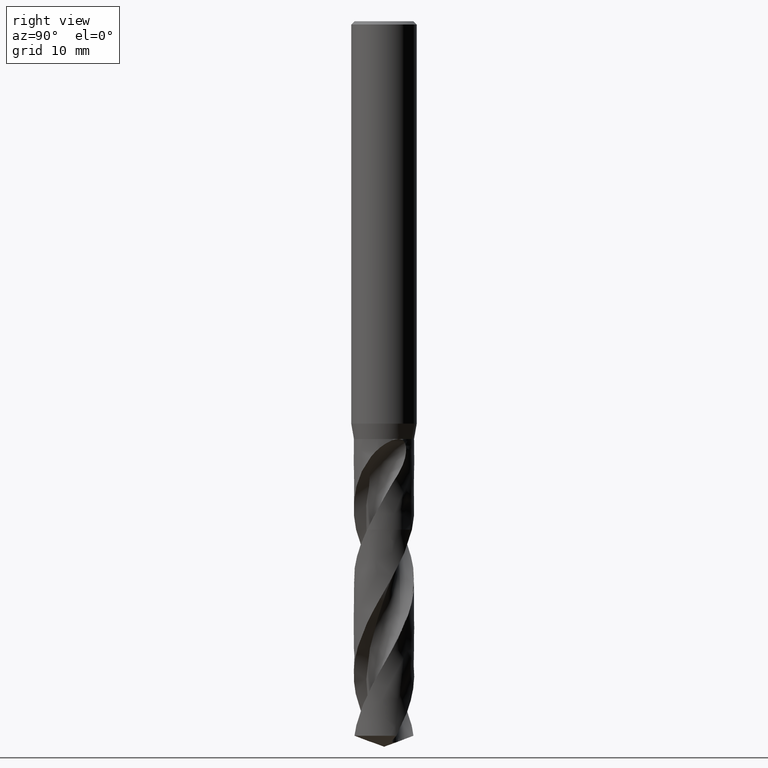
[diagram: clean part render]
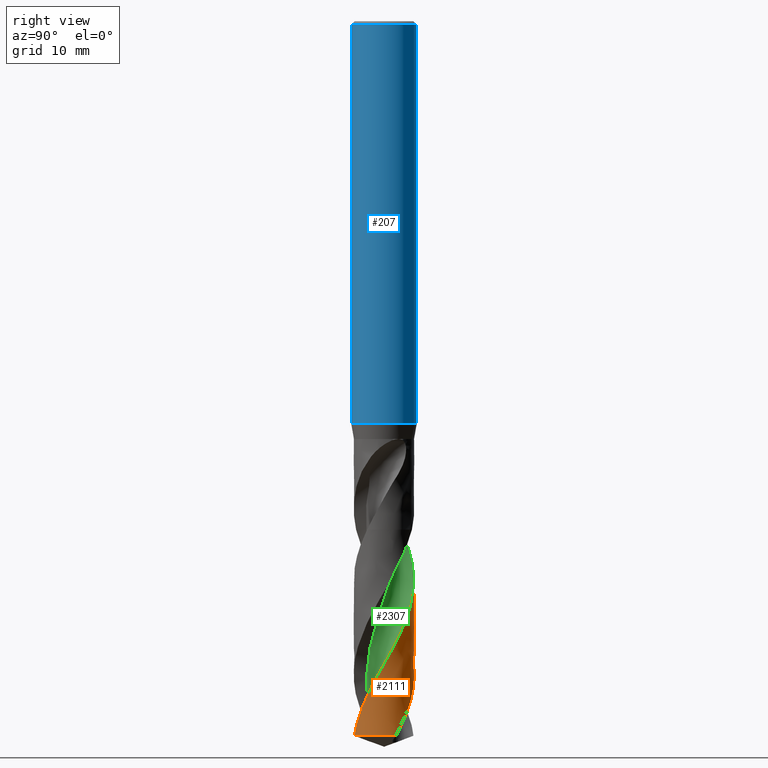
[diagram: same view with three faces highlighted in distinct colors, each labeled with its STEP entity id]
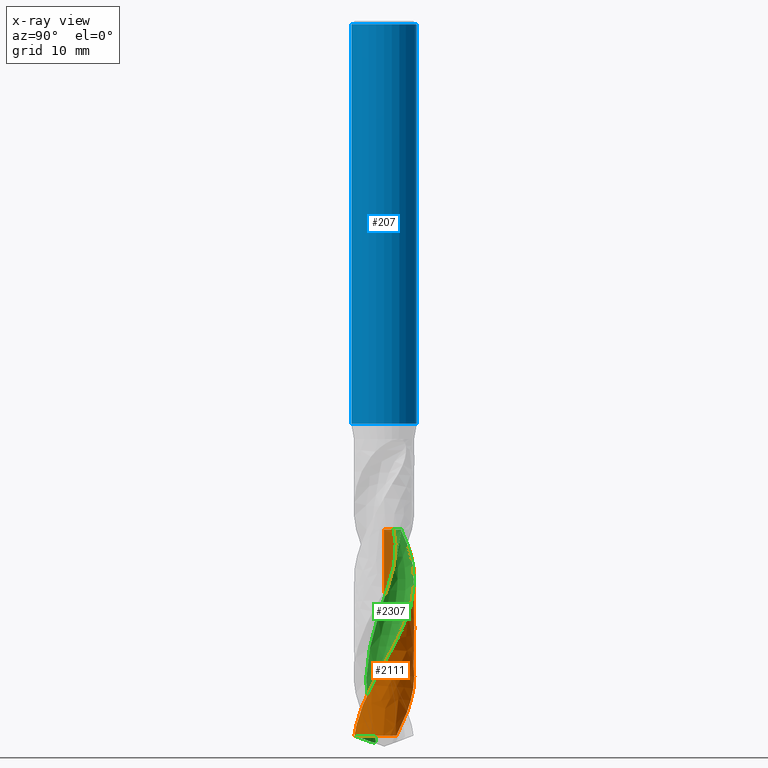
[diagram: x-ray of the same camera — body ghosted, the three highlighted faces saturated]
A machine part, right view with three faces highlighted in distinct colors.
The next image is the same camera in x-ray (body ghosted, the three faces saturated) — at least one of them is partly hidden behind the body in this view.
Their STEP definitions:

[orange] entity #2111 — the highlighted face is a freeform B-spline surface patch.
#1615 = VERTEX_POINT('', #1616);
#1616 = CARTESIAN_POINT('', (-2.75, 3.00038465791102E-15, -46.25));
#1706 = VERTEX_POINT('', #1707);
#1707 = CARTESIAN_POINT('', (-2.27851248448956, 1.53976649464301, -46.25));
#1762 = EDGE_CURVE('', #1615, #1706, #1763, .T.);
#1763 = CIRCLE('', #1764, 2.75);
#1764 = AXIS2_PLACEMENT_3D('', #1765, #1766, #1767);
#1765 = CARTESIAN_POINT('', (1.73409724870277E-31, 2.83199572302825E-15, -46.25));
#1766 = DIRECTION('', (3.74939945665464E-33, 6.12323399573677E-17, -1.));
#1767 = DIRECTION('', (-1., 6.12323399573677E-17, 0.));
#1779 = VERTEX_POINT('', #1780);
#1780 = CARTESIAN_POINT('', (-2.75, 3.34581916108699E-15, -51.891373552219));
#1829 = EDGE_CURVE('', #1830, #1779, #1832, .T.);
#1830 = VERTEX_POINT('', #1831);
#1831 = CARTESIAN_POINT('', (2.51018190618321, 1.12315929318616, -64.9990818557679));
#1832 = B_SPLINE_CURVE_WITH_KNOTS('', 3, (#1833, #1834, #1835, #1836, #1837, #1838, #1839, #1840, #1841, #1842, #1843, #1844, #1845, #1846, #1847, #1848, #1849, #1850, #1851, #1852, #1853, #1854, #1855, #1856, #1857, #1858, #1859, #1860, #1861, #1862, #1863, #1864, #1865, #1866, #1867, #1868, #1869, #1870, #1871, #1872, #1873, #1874, #1875, #1876, #1877, #1878, #1879, #1880, #1881, #1882, #1883, #1884, #1885, #1886, #1887, #1888, #1889, #1890, #1891, #1892, #1893, #1894, #1895, #1896, #1897, #1898, #1899, #1900, #1901, #1902, #1903, #1904, #1905, #1906, #1907, #1908, #1909, #1910, #1911, #1912, #1913, #1914, #1915, #1916, #1917, #1918, #1919, #1920, #1921, #1922, #1923, #1924, #1925, #1926, #1927, #1928, #1929, #1930, #1931, #1932, #1933, #1934, #1935), .UNSPECIFIED., .F., .U., (4, 3, 3, 3, 3, 3, 3, 3, 3, 3, 3, 3, 3, 3, 3, 3, 3, 3, 3, 3, 3, 3, 3, 3, 3, 3, 3, 3, 3, 3, 3, 3, 3, 3, 4), (0., 0.665763922773144, 1.33122759489583, 1.77467567619952, 2.21803733732328, 2.66131276652068, 3.10450222029366, 3.54760561407544, 3.99062238588886, 4.43355159584397, 4.87639235407992, 5.3191434333832, 5.76180310549649, 6.20436917432799, 6.33566089769087, 6.3940314895087, 7.06095132157373, 7.72752343641873, 8.39376425914881, 8.83754716814691, 9.28123870447748, 9.72484021023002, 10.1683529228079, 10.6117777967992, 11.0551153870319, 11.4983658459927, 11.9415292192077, 12.3846053247352, 12.8275936155074, 13.2704931319243, 13.7133027408607, 14.1560210714536, 14.5986463619308, 15.0411763719366, 15.0917446759979), .UNSPECIFIED.);
#1833 = CARTESIAN_POINT('', (2.51018190618321, 1.12315929318616, -64.9990818557679));
#1834 = CARTESIAN_POINT('', (2.4653665857715, 1.22331837756515, -64.8061859987993));
#1835 = CARTESIAN_POINT('', (2.41452115213197, 1.32084572927406, -64.6132129866751));
#1836 = CARTESIAN_POINT('', (2.35804971995155, 1.41495636619524, -64.4203315927339));
#1837 = CARTESIAN_POINT('', (2.30160375563393, 1.50902456047424, -64.2275371857291));
#1838 = CARTESIAN_POINT('', (2.2394874292462, 1.59976144257356, -64.0346659337821));
#1839 = CARTESIAN_POINT('', (2.17219572520097, 1.68643580708507, -63.8418861720377));
#1840 = CARTESIAN_POINT('', (2.12735424354453, 1.74419340115213, -63.7134226374513));
#1841 = CARTESIAN_POINT('', (2.08019483366152, 1.80017716159137, -63.5849375895603));
#1842 = CARTESIAN_POINT('', (2.03088530745498, 1.8541857695397, -63.4564805198414));
#1843 = CARTESIAN_POINT('', (1.98158539080208, 1.90818385216655, -63.3280484841311));
#1844 = CARTESIAN_POINT('', (1.93011669999975, 1.96022893989907, -63.1995947432933));
#1845 = CARTESIAN_POINT('', (1.87666186683626, 2.01013438296116, -63.0711693171882));
#1846 = CARTESIAN_POINT('', (1.82321743040673, 2.06003011963033, -62.9427688692732));
#1847 = CARTESIAN_POINT('', (1.76776732901539, 2.10780602067593, -62.8143463926423));
#1848 = CARTESIAN_POINT('', (1.71050783445422, 2.15329118984654, -62.6859524012879));
#1849 = CARTESIAN_POINT('', (1.65325944565038, 2.19876753694748, -62.5575833125723));
#1850 = CARTESIAN_POINT('', (1.59418056745944, 2.24197132679168, -62.4291923828914));
#1851 = CARTESIAN_POINT('', (1.53348111191269, 2.28274739719642, -62.3008296652408));
#1852 = CARTESIAN_POINT('', (1.4727934431866, 2.3235155495692, -62.1724918734866));
#1853 = CARTESIAN_POINT('', (1.41046189127694, 2.36187297287134, -62.0441325329425));
#1854 = CARTESIAN_POINT('', (1.34670881849774, 2.39768124615856, -61.9158011749233));
#1855 = CARTESIAN_POINT('', (1.28296820876154, 2.43348251931181, -61.7874949043103));
#1856 = CARTESIAN_POINT('', (1.2177813661997, 2.46674985179674, -61.6591669519718));
#1857 = CARTESIAN_POINT('', (1.15138028149238, 2.49736329903972, -61.5308672701127));
#1858 = CARTESIAN_POINT('', (1.0849923208985, 2.52797069556296, -61.402592946568));
#1859 = CARTESIAN_POINT('', (1.01736526321078, 2.5559369615189, -61.2742966105157));
#1860 = CARTESIAN_POINT('', (0.94873904872859, 2.58116140863325, -61.1460287420987));
#1861 = CARTESIAN_POINT('', (0.88012653870868, 2.60638081849637, -61.0177864884148));
#1862 = CARTESIAN_POINT('', (0.810489156017791, 2.62886908300371, -60.8895223649904));
#1863 = CARTESIAN_POINT('', (0.740074706422218, 2.64854477570498, -60.7612864760986));
#1864 = CARTESIAN_POINT('', (0.669674516337693, 2.66821648391501, -60.6330765560397));
#1865 = CARTESIAN_POINT('', (0.598469894120988, 2.68508446651199, -60.5048450549392));
#1866 = CARTESIAN_POINT('', (0.526715220200087, 2.69908708210937, -60.3766415448613));
#1867 = CARTESIAN_POINT('', (0.454975360230903, 2.71308680682787, -60.2484645027541));
#1868 = CARTESIAN_POINT('', (0.38265720520767, 2.72422791737633, -60.1202657938721));
#1869 = CARTESIAN_POINT('', (0.31001863276191, 2.73246929485779, -59.9920953159367));
#1870 = CARTESIAN_POINT('', (0.237395420217206, 2.7407089296461, -59.8639519404868));
#1871 = CARTESIAN_POINT('', (0.164424085915453, 2.74605323987454, -59.7357865747089));
#1872 = CARTESIAN_POINT('', (0.0913639874922569, 2.74848187583434, -59.6076496518521));
#1873 = CARTESIAN_POINT('', (0.069689966579697, 2.74920235538088, -59.5696365310706));
#1874 = CARTESIAN_POINT('', (0.0480065404236954, 2.7496664702023, -59.5316230483155));
#1875 = CARTESIAN_POINT('', (0.0263205497033459, 2.74987403869038, -59.4936104931969));
#1876 = CARTESIAN_POINT('', (0.0166792404107251, 2.74996632093926, -59.4767106058168));
#1877 = CARTESIAN_POINT('', (0.00703731810773576, 2.75000789873662, -59.4598107152062));
#1878 = CARTESIAN_POINT('', (-0.00260461512736065, 2.74999876654155, -59.4429109343069));
#1879 = CARTESIAN_POINT('', (-0.112769619347318, 2.74989442560875, -59.249820566567));
#1880 = CARTESIAN_POINT('', (-0.222989711214075, 2.74315831404304, -59.0566519127969));
#1881 = CARTESIAN_POINT('', (-0.332372434516068, 2.72984039181327, -58.8635760677353));
#1882 = CARTESIAN_POINT('', (-0.441698128090295, 2.71652941325299, -58.6706008881403));
#1883 = CARTESIAN_POINT('', (-0.55028398543096, 2.69663168827695, -58.4775476737424));
#1884 = CARTESIAN_POINT('', (-0.657250182427947, 2.67030376506096, -58.2845871012812));
#1885 = CARTESIAN_POINT('', (-0.764163216298486, 2.64398892705087, -58.0917224318958));
#1886 = CARTESIAN_POINT('', (-0.869552833744661, 2.61122698889474, -57.898779742295));
#1887 = CARTESIAN_POINT('', (-0.972565155856064, 2.57227856532195, -57.7059297228436));
#1888 = CARTESIAN_POINT('', (-1.04118164768543, 2.5463350264028, -57.5774723547079));
#1889 = CARTESIAN_POINT('', (-1.10877828832228, 2.51763652112219, -57.4489931053462));
#1890 = CARTESIAN_POINT('', (-1.17511107207172, 2.48628517437048, -57.3205421791219));
#1891 = CARTESIAN_POINT('', (-1.24143019823482, 2.4549402827033, -57.1921177002969));
#1892 = CARTESIAN_POINT('', (-1.30651248769319, 2.42093113015306, -57.063671263894));
#1893 = CARTESIAN_POINT('', (-1.37012334334214, 2.38437875012108, -56.9352533599719));
#1894 = CARTESIAN_POINT('', (-1.4337212915506, 2.3478337870255, -56.8068615136532));
#1895 = CARTESIAN_POINT('', (-1.49587307936268, 2.30873247205372, -56.6784474295573));
#1896 = CARTESIAN_POINT('', (-1.55635526424078, 2.26721377277707, -56.5500620625257));
#1897 = CARTESIAN_POINT('', (-1.61682534274608, 2.22570338406083, -56.4217023936582));
#1898 = CARTESIAN_POINT('', (-1.67564979120666, 2.18176056491592, -56.2933205719954));
#1899 = CARTESIAN_POINT('', (-1.73261667492892, 2.13554195879132, -56.164967301821));
#1900 = CARTESIAN_POINT('', (-1.78957227624504, 2.08933250635482, -56.0366394522705));
#1901 = CARTESIAN_POINT('', (-1.8446935456089, 2.04082988640761, -55.9082896903319));
#1902 = CARTESIAN_POINT('', (-1.89778116684983, 1.99020768834564, -55.7799682637486));
#1903 = CARTESIAN_POINT('', (-1.95085833832261, 1.93959545475788, -55.6516720959567));
#1904 = CARTESIAN_POINT('', (-2.00192388055106, 1.88684425480381, -55.5233539825844));
#1905 = CARTESIAN_POINT('', (-2.05079322816261, 1.8321427715444, -55.3950643665447));
#1906 = CARTESIAN_POINT('', (-2.0996529712459, 1.77745203903095, -55.2667999638812));
#1907 = CARTESIAN_POINT('', (-2.14633642726309, 1.72079050258187, -55.1385133476956));
#1908 = CARTESIAN_POINT('', (-2.19067524750622, 1.6623603580342, -55.0102554242162));
#1909 = CARTESIAN_POINT('', (-2.23500535646852, 1.60394169330027, -54.882022699666));
#1910 = CARTESIAN_POINT('', (-2.27700885330554, 1.54373256155279, -54.7537678075518));
#1911 = CARTESIAN_POINT('', (-2.31653394505644, 1.48194820469585, -54.625541480437));
#1912 = CARTESIAN_POINT('', (-2.35605125353018, 1.42017601440835, -54.4973404036379));
#1913 = CARTESIAN_POINT('', (-2.3931067014227, 1.3568048422519, -54.3691173842793));
#1914 = CARTESIAN_POINT('', (-2.42756580962272, 1.29206201087673, -54.2409227162858));
#1915 = CARTESIAN_POINT('', (-2.46201808825527, 1.22733201110278, -54.1127534556281));
#1916 = CARTESIAN_POINT('', (-2.49388882754462, 1.16120503005587, -53.9845622540427));
#1917 = CARTESIAN_POINT('', (-2.52306222543554, 1.09391819007651, -53.8563995224381));
#1918 = CARTESIAN_POINT('', (-2.55222977701034, 1.0266448343042, -53.7282624745008));
#1919 = CARTESIAN_POINT('', (-2.57871248815699, 0.958185792983651, -53.6001032376327));
#1920 = CARTESIAN_POINT('', (-2.60241417949636, 0.888785935057671, -53.4719726672628));
#1921 = CARTESIAN_POINT('', (-2.62611105945238, 0.819400165127162, -53.3438681070743));
#1922 = CARTESIAN_POINT('', (-2.64703720403346, 0.749047132390996, -53.2157413721377));
#1923 = CARTESIAN_POINT('', (-2.66511628187895, 0.677978763726267, -53.087643208805));
#1924 = CARTESIAN_POINT('', (-2.68319163300251, 0.60692504470515, -52.959571450925));
#1925 = CARTESIAN_POINT('', (-2.69842818964329, 0.535128296211544, -52.8314777252743));
#1926 = CARTESIAN_POINT('', (-2.71076985425232, 0.46284640786873, -52.7034123653844));
#1927 = CARTESIAN_POINT('', (-2.72310892518084, 0.390579710031467, -52.5753739192568));
#1928 = CARTESIAN_POINT('', (-2.73255925025066, 0.317799211010699, -52.4473135341733));
#1929 = CARTESIAN_POINT('', (-2.7390855128136, 0.244766324266337, -52.3192815954814));
#1930 = CARTESIAN_POINT('', (-2.74561037051924, 0.171749158738165, -52.1912772172199));
#1931 = CARTESIAN_POINT('', (-2.74921500109612, 0.0984510809656889, -52.0632506763683));
#1932 = CARTESIAN_POINT('', (-2.74988513319361, 0.0251347218237486, -51.9352527721311));
#1933 = CARTESIAN_POINT('', (-2.74996170979384, 0.0167567952245791, -51.9206263359701));
#1934 = CARTESIAN_POINT('', (-2.75, 0.00837842319928842, -51.9059999043802));
#1935 = CARTESIAN_POINT('', (-2.75, 3.26131576613711E-15, -51.891373552219));
#2098 = EDGE_CURVE('', #1615, #1779, #2099, .T.);
#2099 = LINE('', #2100, #2101);
#2100 = CARTESIAN_POINT('', (-2.75, 3.00038465791102E-15, -46.25));
#2101 = VECTOR('', #2102, 5.64137355221899);
#2102 = DIRECTION('', (0., 3.45434503175976E-16, -5.64137355221899));
#2111 = ADVANCED_FACE('', (#2112), #2292, .T.);
#2112 = FACE_OUTER_BOUND('', #2113, .T.);
#2113 = EDGE_LOOP('', (#2114, #2115, #2133, #2271, #2283, #2290, #2291));
#2114 = ORIENTED_EDGE('', *, *, #1762, .T.);
#2115 = ORIENTED_EDGE('', *, *, #2116, .F.);
#2116 = EDGE_CURVE('', #2117, #1706, #2119, .T.);
#2117 = VERTEX_POINT('', #2118);
#2118 = CARTESIAN_POINT('', (-1.753449402835, 2.11847001198921, -47.6103389989093));
#2119 = B_SPLINE_CURVE_WITH_KNOTS('', 3, (#2120, #2121, #2122, #2123, #2124, #2125, #2126, #2127, #2128, #2129, #2130, #2131, #2132), .UNSPECIFIED., .F., .U., (4, 3, 3, 3, 4), (0., 0.665090033715653, 1.10836822540834, 1.55155927942249, 1.56995542712365), .UNSPECIFIED.);
#2120 = CARTESIAN_POINT('', (-1.75344940283501, 2.11847001198921, -47.6103389989093));
#2121 = CARTESIAN_POINT('', (-1.83870105023671, 2.04790755446976, -47.4182387303038));
#2122 = CARTESIAN_POINT('', (-1.91973883891501, 1.97214551372188, -47.2260623068632));
#2123 = CARTESIAN_POINT('', (-1.99589438087502, 1.89179957193978, -47.0339834687208));
#2124 = CARTESIAN_POINT('', (-2.04665155541696, 1.83824952310798, -46.9059641695012));
#2125 = CARTESIAN_POINT('', (-2.09526712779177, 1.78263882729933, -46.7779233085033));
#2126 = CARTESIAN_POINT('', (-2.14156058226514, 1.72517195446952, -46.6499103635714));
#2127 = CARTESIAN_POINT('', (-2.18784493657471, 1.66771637822498, -46.5219225828616));
#2128 = CARTESIAN_POINT('', (-2.231828013501, 1.6083812393421, -46.3939119102584));
#2129 = CARTESIAN_POINT('', (-2.27335406327402, 1.54737238665924, -46.2659362727681));
#2130 = CARTESIAN_POINT('', (-2.27507774279812, 1.54484000732788, -46.2606242099273));
#2131 = CARTESIAN_POINT('', (-2.27679724776942, 1.54230466409551, -46.2553120322504));
#2132 = CARTESIAN_POINT('', (-2.27851248448956, 1.53976649464301, -46.25));
#2133 = ORIENTED_EDGE('', *, *, #2134, .T.);
#2134 = EDGE_CURVE('', #2117, #2135, #2137, .T.);
#2135 = VERTEX_POINT('', #2136);
#2136 = CARTESIAN_POINT('', (1.11228331269409, -2.51502004610346, -64.046816170427));
#2137 = B_SPLINE_CURVE_WITH_KNOTS('', 3, (#2138, #2139, #2140, #2141, #2142, #2143, #2144, #2145, #2146, #2147, #2148, #2149, #2150, #2151, #2152, #2153, #2154, #2155, #2156, #2157, #2158, #2159, #2160, #2161, #2162, #2163, #2164, #2165, #2166, #2167, #2168, #2169, #2170, #2171, #2172, #2173, #2174, #2175, #2176, #2177, #2178, #2179, #2180, #2181, #2182, #2183, #2184, #2185, #2186, #2187, #2188, #2189, #2190, #2191, #2192, #2193, #2194, #2195, #2196, #2197, #2198, #2199, #2200, #2201, #2202, #2203, #2204, #2205, #2206, #2207, #2208, #2209, #2210, #2211, #2212, #2213, #2214, #2215, #2216, #2217, #2218, #2219, #2220, #2221, #2222, #2223, #2224, #2225, #2226, #2227, #2228, #2229, #2230, #2231, #2232, #2233, #2234, #2235, #2236, #2237, #2238, #2239, #2240, #2241, #2242, #2243, #2244, #2245, #2246, #2247, #2248, #2249, #2250, #2251, #2252, #2253, #2254, #2255, #2256, #2257, #2258, #2259, #2260, #2261, #2262, #2263, #2264, #2265, #2266, #2267, #2268, #2269, #2270), .UNSPECIFIED., .F., .U., (4, 3, 3, 3, 3, 3, 3, 3, 3, 3, 3, 3, 3, 3, 3, 3, 3, 3, 3, 3, 3, 3, 3, 3, 3, 3, 3, 3, 3, 3, 3, 3, 3, 3, 3, 3, 3, 3, 3, 3, 3, 3, 3, 3, 4), (0., 0.664623888491324, 1.3289509450817, 1.99298079679927, 2.6567102463961, 3.09937570301452, 3.54194705065202, 3.7388272442198, 3.79719744075243, 3.83611926384423, 4.28034990461805, 4.72447504129223, 5.16849812806313, 5.61242242997777, 6.05625076096502, 6.49998538143143, 6.94362805343519, 7.38718044249121, 7.83064392362633, 8.27401944662315, 8.71730753304219, 9.16050860353222, 9.60362286142296, 10.046650142153, 10.4895898679676, 10.9324412917978, 11.3752034534322, 11.8178750230885, 12.2604542202968, 12.4573362317132, 12.51570692327, 13.1826234842625, 13.8491900099663, 14.2931107156831, 14.7369372496264, 15.1806717913028, 15.6243162163457, 16.0678721527757, 16.5113409006764, 16.9547233740845, 17.3980201917121, 17.8412317891785, 18.2843583588797, 18.7273997409607, 18.9309074910209), .UNSPECIFIED.);
#2138 = CARTESIAN_POINT('', (-1.753449402835, 2.11847001198921, -47.6103389989093));
#2139 = CARTESIAN_POINT('', (-1.66825750621333, 2.18898301402004, -47.8023046291678));
#2140 = CARTESIAN_POINT('', (-1.57878297064799, 2.25436559297207, -47.9943696205875));
#2141 = CARTESIAN_POINT('', (-1.48576191764277, 2.31408978306428, -48.1863608983101));
#2142 = CARTESIAN_POINT('', (-1.39278240936153, 2.37378729935619, -48.3782664295874));
#2143 = CARTESIAN_POINT('', (-1.29617609146054, 2.42788520533053, -48.5702717331608));
#2144 = CARTESIAN_POINT('', (-1.19673363607573, 2.47595004074901, -48.7622031923062));
#2145 = CARTESIAN_POINT('', (-1.09733566899228, 2.52399337304917, -48.9540487856656));
#2146 = CARTESIAN_POINT('', (-0.995015826976407, 2.5660517714186, -49.1459940187565));
#2147 = CARTESIAN_POINT('', (-0.890608474779247, 2.60179102632235, -49.3378654856199));
#2148 = CARTESIAN_POINT('', (-0.786248355684545, 2.63751411305545, -49.529650151272));
#2149 = CARTESIAN_POINT('', (-0.679710575087537, 2.66695533670955, -49.7215342964517));
#2150 = CARTESIAN_POINT('', (-0.571861055768327, 2.68988381401427, -49.9133448735155));
#2151 = CARTESIAN_POINT('', (-0.49993226498691, 2.70517565451016, -50.0412703659458));
#2152 = CARTESIAN_POINT('', (-0.427385589800532, 2.71758094645216, -50.1692274199492));
#2153 = CARTESIAN_POINT('', (-0.354482642396505, 2.7270573987798, -50.2971644359128));
#2154 = CARTESIAN_POINT('', (-0.28159519387992, 2.73653183644996, -50.4250742529567));
#2155 = CARTESIAN_POINT('', (-0.208323081300953, 2.74308236507797, -50.5530153211169));
#2156 = CARTESIAN_POINT('', (-0.134931194593611, 2.74668774576318, -50.6809367759721));
#2157 = CARTESIAN_POINT('', (-0.102282427477578, 2.74829161833871, -50.7378433085071));
#2158 = CARTESIAN_POINT('', (-0.0696056798726652, 2.74931324392709, -50.7947531807348));
#2159 = CARTESIAN_POINT('', (-0.0369243195663333, 2.74975209693975, -50.8516619141871));
#2160 = CARTESIAN_POINT('', (-0.0272350898400448, 2.7498822062013, -50.8685339717356));
#2161 = CARTESIAN_POINT('', (-0.0175453111853599, 2.74996110034582, -50.8854061867203));
#2162 = CARTESIAN_POINT('', (-0.00785559531789012, 2.74998877990842, -50.9022784440465));
#2163 = CARTESIAN_POINT('', (-0.00139439715158566, 2.75000723691393, -50.9135290317404));
#2164 = CARTESIAN_POINT('', (0.00506679798996055, 2.75000292235383, -50.9247796815718));
#2165 = CARTESIAN_POINT('', (0.0115278089709766, 2.74997583800664, -50.9360303593028));
#2166 = CARTESIAN_POINT('', (0.0852699623478591, 2.74966671330617, -51.0644389327089));
#2167 = CARTESIAN_POINT('', (0.15900380710575, 2.74638905006514, -51.1928793149362));
#2168 = CARTESIAN_POINT('', (0.232462559496855, 2.74015714119336, -51.3212994748639));
#2169 = CARTESIAN_POINT('', (0.305903865546308, 2.73392671239042, -51.4496891351996));
#2170 = CARTESIAN_POINT('', (0.379099028971387, 2.72474097155986, -51.5781102984161));
#2171 = CARTESIAN_POINT('', (0.451782579594579, 2.7126357110337, -51.706511671831));
#2172 = CARTESIAN_POINT('', (0.524449429183087, 2.70053323202239, -51.8348835415167));
#2173 = CARTESIAN_POINT('', (0.596634572200637, 2.68550761903569, -51.9632865599029));
#2174 = CARTESIAN_POINT('', (0.668075950897737, 2.66761588761057, -52.091669943993));
#2175 = CARTESIAN_POINT('', (0.739501435542171, 2.64972813668144, -52.2200247657526));
#2176 = CARTESIAN_POINT('', (0.810212337315077, 2.62896835327132, -52.3484109715144));
#2177 = CARTESIAN_POINT('', (0.879953462905524, 2.60541396003028, -52.47677723546));
#2178 = CARTESIAN_POINT('', (0.949679511329728, 2.58186465895688, -52.6051157482117));
#2179 = CARTESIAN_POINT('', (1.01846327708452, 2.55551284164321, -52.733485887277));
#2180 = CARTESIAN_POINT('', (1.08605776348203, 2.52645572579067, -52.861835934773));
#2181 = CARTESIAN_POINT('', (1.15363797788723, 2.49740474509732, -52.9901588822643));
#2182 = CARTESIAN_POINT('', (1.22005565902236, 2.46563830145446, -53.118513183662));
#2183 = CARTESIAN_POINT('', (1.28507180850472, 2.43127342086126, -53.2468478204499));
#2184 = CARTESIAN_POINT('', (1.35007448566666, 2.39691566118628, -53.3751558643779));
#2185 = CARTESIAN_POINT('', (1.41370257020566, 2.35994658761319, -53.5034948573706));
#2186 = CARTESIAN_POINT('', (1.47572672982334, 2.3205022341909, -53.6318143977047));
#2187 = CARTESIAN_POINT('', (1.5377382672919, 2.28106590784247, -53.760107824531));
#2188 = CARTESIAN_POINT('', (1.59817154133016, 2.23913944464452, -53.8884324156367));
#2189 = CARTESIAN_POINT('', (1.65681003301885, 2.19487596790527, -54.0167372475853));
#2190 = CARTESIAN_POINT('', (1.71543677090684, 2.15062136356483, -54.1450163614538));
#2191 = CARTESIAN_POINT('', (1.77229211718121, 2.10401360914703, -54.2733269260261));
#2192 = CARTESIAN_POINT('', (1.827173589944, 2.05522180608595, -54.4016175311266));
#2193 = CARTESIAN_POINT('', (1.88204417731852, 2.00643968056618, -54.5298826906081));
#2194 = CARTESIAN_POINT('', (1.9349627683095, 1.95545559107577, -54.6581790649484));
#2195 = CARTESIAN_POINT('', (1.98574065402603, 1.90245474452042, -54.7864558939255));
#2196 = CARTESIAN_POINT('', (2.03650852600856, 1.84946435008163, -54.9147074258658));
#2197 = CARTESIAN_POINT('', (2.08515696669969, 1.79443663478691, -55.0429897219459));
#2198 = CARTESIAN_POINT('', (2.13151217559821, 1.73757182449435, -55.1712527412921));
#2199 = CARTESIAN_POINT('', (2.17785828512841, 1.68071817656875, -55.2994905830481));
#2200 = CARTESIAN_POINT('', (2.22193072702915, 1.62200530998614, -55.4277593767189));
#2201 = CARTESIAN_POINT('', (2.26357307435207, 1.56164558625455, -55.5560085945323));
#2202 = CARTESIAN_POINT('', (2.30520726492481, 1.50129768556415, -55.6842326913596));
#2203 = CARTESIAN_POINT('', (2.34442836179626, 1.43928037354612, -55.8124880662023));
#2204 = CARTESIAN_POINT('', (2.38109824015041, 1.37581654691046, -55.9407236177464));
#2205 = CARTESIAN_POINT('', (2.41776092071788, 1.31236517734056, -56.0689339984367));
#2206 = CARTESIAN_POINT('', (2.45188733827497, 1.24744367437351, -56.1971754605654));
#2207 = CARTESIAN_POINT('', (2.48335741355932, 1.18128572179637, -56.3253974939132));
#2208 = CARTESIAN_POINT('', (2.51482126945291, 1.11514084393085, -56.4535941869044));
#2209 = CARTESIAN_POINT('', (2.5436423827705, 1.04773355513632, -56.5818214698296));
#2210 = CARTESIAN_POINT('', (2.56971932719897, 0.979307193591514, -56.7100296489931));
#2211 = CARTESIAN_POINT('', (2.59579107307375, 0.910894473143153, -56.8382122692917));
#2212 = CARTESIAN_POINT('', (2.61913023381527, 0.84143564441997, -56.9664256330803));
#2213 = CARTESIAN_POINT('', (2.63965551137505, 0.771180122453464, -57.0946196072484));
#2214 = CARTESIAN_POINT('', (2.66017665181063, 0.700938761358552, -57.2227877423314));
#2215 = CARTESIAN_POINT('', (2.67789294657345, 0.629874117685918, -57.3509869824323));
#2216 = CARTESIAN_POINT('', (2.69274366884306, 0.558239674248984, -57.4791665417445));
#2217 = CARTESIAN_POINT('', (2.70759135255965, 0.48661988767864, -57.6073198746967));
#2218 = CARTESIAN_POINT('', (2.71958022622123, 0.414403496186536, -57.7355041573504));
#2219 = CARTESIAN_POINT('', (2.72866994508664, 0.341848403215402, -57.8636691283128));
#2220 = CARTESIAN_POINT('', (2.73775776719689, 0.269308450343641, -57.991807355041));
#2221 = CARTESIAN_POINT('', (2.74395121415255, 0.196401177445364, -58.1199760043621));
#2222 = CARTESIAN_POINT('', (2.74723049978653, 0.123387929080312, -58.2481257225487));
#2223 = CARTESIAN_POINT('', (2.74868929485801, 0.0909078773995478, -58.3051333144965));
#2224 = CARTESIAN_POINT('', (2.74957195701184, 0.0584027540499973, -58.3621442787227));
#2225 = CARTESIAN_POINT('', (2.74987807613143, 0.0258952970962067, -58.4191540929078));
#2226 = CARTESIAN_POINT('', (2.74996883294858, 0.0162576327433583, -58.4360561057202));
#2227 = CARTESIAN_POINT('', (2.75000892124952, 0.00661962306429951, -58.4529582696304));
#2228 = CARTESIAN_POINT('', (2.74999834379989, -0.00301812820834852, -58.4698604732327));
#2229 = CARTESIAN_POINT('', (2.74987749074594, -0.113134622685772, -58.6629772446642));
#2230 = CARTESIAN_POINT('', (2.74313084450299, -0.223268392425343, -58.8561928130687));
#2231 = CARTESIAN_POINT('', (2.72982100521066, -0.332531621820627, -59.0493356080409));
#2232 = CARTESIAN_POINT('', (2.71651815166994, -0.441737503733051, -59.2423770308206));
#2233 = CARTESIAN_POINT('', (2.69664756970854, -0.55016788160036, -59.4355169852803));
#2234 = CARTESIAN_POINT('', (2.67037732490997, -0.656951248272422, -59.6285845079397));
#2235 = CARTESIAN_POINT('', (2.65288183847217, -0.728066951902802, -59.75716382839));
#2236 = CARTESIAN_POINT('', (2.63254244211187, -0.798486608487719, -59.8857743700226));
#2237 = CARTESIAN_POINT('', (2.60943389179543, -0.867960116796542, -60.0143652077271));
#2238 = CARTESIAN_POINT('', (2.58633024364537, -0.937418887240245, -60.1429287666247));
#2239 = CARTESIAN_POINT('', (2.56044989039354, -1.00595807025792, -60.2715233070139));
#2240 = CARTESIAN_POINT('', (2.53188759041775, -1.07333369903708, -60.4000986067121));
#2241 = CARTESIAN_POINT('', (2.50333121057185, -1.14069536281785, -60.5286472565092));
#2242 = CARTESIAN_POINT('', (2.47208259381025, -1.20692076831908, -60.6572263474069));
#2243 = CARTESIAN_POINT('', (2.43825604943628, -1.27177334355907, -60.7857865446777));
#2244 = CARTESIAN_POINT('', (2.40443637478736, -1.3366127480963, -60.9143206330679));
#2245 = CARTESIAN_POINT('', (2.36802634297001, -1.40010579048059, -61.0428853562799));
#2246 = CARTESIAN_POINT('', (2.32915800500036, -1.46202701334234, -61.1714308545098));
#2247 = CARTESIAN_POINT('', (2.29029741964772, -1.52393588549525, -61.2999507132587));
#2248 = CARTESIAN_POINT('', (2.24896481772632, -1.58429705161509, -61.4285016176318));
#2249 = CARTESIAN_POINT('', (2.20530877322639, -1.6428978101911, -61.5570329698808));
#2250 = CARTESIAN_POINT('', (2.16166131007098, -1.70148704978263, -61.6855390570874));
#2251 = CARTESIAN_POINT('', (2.11567503795438, -1.75833839654747, -61.8140760213857));
#2252 = CARTESIAN_POINT('', (2.06751534787892, -1.81325130257367, -61.9425938469531));
#2253 = CARTESIAN_POINT('', (2.01936502701572, -1.86815352558526, -62.0710866700591));
#2254 = CARTESIAN_POINT('', (1.96902312359512, -1.92113968006556, -62.199609784195));
#2255 = CARTESIAN_POINT('', (1.91667130791184, -1.97202208340259, -62.3281141868664));
#2256 = CARTESIAN_POINT('', (1.86432960592476, -2.02289465691496, -62.456593764143));
#2257 = CARTESIAN_POINT('', (1.80995790623269, -2.07168460868572, -62.5851037590814));
#2258 = CARTESIAN_POINT('', (1.75375126845134, -2.11822012274582, -62.7135947474049));
#2259 = CARTESIAN_POINT('', (1.69755543593304, -2.16474669073672, -62.8420610343944));
#2260 = CARTESIAN_POINT('', (1.63950413562054, -2.20903733176684, -62.9705581917194));
#2261 = CARTESIAN_POINT('', (1.57980389178229, -2.25093750768641, -63.099035956947));
#2262 = CARTESIAN_POINT('', (1.52011510111528, -2.2928296452822, -63.2274890744051));
#2263 = CARTESIAN_POINT('', (1.45875597618347, -2.33234767775306, -63.3559729694371));
#2264 = CARTESIAN_POINT('', (1.39594491627629, -2.36935387621232, -63.4844378219738));
#2265 = CARTESIAN_POINT('', (1.33314593130455, -2.40635296051912, -63.6128779781465));
#2266 = CARTESIAN_POINT('', (1.2688710775861, -2.44085555650197, -63.7413482975332));
#2267 = CARTESIAN_POINT('', (1.20335026663599, -2.47274101672356, -63.8698000753706));
#2268 = CARTESIAN_POINT('', (1.17325377145997, -2.48738736474381, -63.9288034401943));
#2269 = CARTESIAN_POINT('', (1.14289059768896, -2.50148378328145, -63.9878104479351));
#2270 = CARTESIAN_POINT('', (1.11228331269409, -2.51502004610346, -64.046816170427));
#2271 = ORIENTED_EDGE('', *, *, #2272, .T.);
#2272 = EDGE_CURVE('', #2135, #2273, #2275, .T.);
#2273 = VERTEX_POINT('', #2274);
#2274 = CARTESIAN_POINT('', (0.600300586530691, -2.68368016086323, -64.9990818557679));
#2275 = B_SPLINE_CURVE_WITH_KNOTS('', 3, (#2276, #2277, #2278, #2279, #2280, #2281, #2282), .UNSPECIFIED., .F., .U., (4, 3, 4), (0., 0.663985703747379, 1.09455547208148), .UNSPECIFIED.);
#2276 = CARTESIAN_POINT('', (1.11228331269407, -2.51502004610347, -64.046816170427));
#2277 = CARTESIAN_POINT('', (1.01242077841169, -2.5591848751742, -64.2393344217579));
#2278 = CARTESIAN_POINT('', (0.909897885209571, -2.59740276396253, -64.431946400347));
#2279 = CARTESIAN_POINT('', (0.805528700540981, -2.62937701986701, -64.6244848516408));
#2280 = CARTESIAN_POINT('', (0.737849207729083, -2.65011112284506, -64.7493387994007));
#2281 = CARTESIAN_POINT('', (0.669363778277651, -2.66823171990593, -64.8742197467736));
#2282 = CARTESIAN_POINT('', (0.600300586530691, -2.68368016086323, -64.9990818557679));
#2283 = ORIENTED_EDGE('', *, *, #2284, .F.);
#2284 = EDGE_CURVE('', #1830, #2273, #2285, .T.);
#2285 = CIRCLE('', #2286, 2.75);
#2286 = AXIS2_PLACEMENT_3D('', #2287, #2288, #2289);
#2287 = CARTESIAN_POINT('', (2.43707522193067E-31, 3.98004587710915E-15, -64.9990818557679));
#2288 = DIRECTION('', (3.74939945665464E-33, 6.12323399573677E-17, -1.));
#2289 = DIRECTION('', (-1., 6.12323399573677E-17, 0.));
#2290 = ORIENTED_EDGE('', *, *, #1829, .T.);
#2291 = ORIENTED_EDGE('', *, *, #2098, .F.);
#2292 = (
   BOUNDED_SURFACE ()
   B_SPLINE_SURFACE (2, 1, ((#2293, #2294), (#2295, #2296), (#2297, #2298), (#2299, #2300), (#2301, #2302), (#2303, #2304), (#2305, #2306)), .UNSPECIFIED., .F., .F., .U.)
   B_SPLINE_SURFACE_WITH_KNOTS ((3, 2, 2, 3), (2, 2), (0., 4.31968989868597, 8.63937979737193, 12.3136983632025), (0.305565946430045, 1.), .UNSPECIFIED.)
   GEOMETRIC_REPRESENTATION_ITEM ()
   RATIONAL_B_SPLINE_SURFACE (((1., 1.), (0.707106781186547, 0.707106781186548), (1., 1.), (0.707106781186547, 0.707106781186548), (1., 1.), (0.750865683201122, 0.750865683201122), (0.925557551646741, 0.925557551646741)))
   REPRESENTATION_ITEM ('')
   SURFACE ()
);
#2293 = CARTESIAN_POINT('', (-2.75, 3.00038465791102E-15, -46.25));
#2294 = CARTESIAN_POINT('', (-2.75, 4.14843481199191E-15, -64.9990818557679));
#2295 = CARTESIAN_POINT('', (-2.75, 2.75, -46.25));
#2296 = CARTESIAN_POINT('', (-2.75, 2.75, -64.9990818557679));
#2297 = CARTESIAN_POINT('', (1.4791141972894E-31, 2.75, -46.25));
#2298 = CARTESIAN_POINT('', (2.46519032881566E-31, 2.75, -64.9990818557679));
#2299 = CARTESIAN_POINT('', (2.75, 2.75, -46.25));
#2300 = CARTESIAN_POINT('', (2.75, 2.75, -64.9990818557679));
#2301 = CARTESIAN_POINT('', (2.75, 3.00038465791102E-15, -46.25));
#2302 = CARTESIAN_POINT('', (2.75, 4.14843481199191E-15, -64.9990818557679));
#2303 = CARTESIAN_POINT('', (2.75, -2.20282337413078, -46.25));
#2304 = CARTESIAN_POINT('', (2.75, -2.20282337413078, -64.9990818557679));
#2305 = CARTESIAN_POINT('', (0.600300586530691, -2.68368016086323, -46.25));
#2306 = CARTESIAN_POINT('', (0.600300586530691, -2.68368016086323, -64.9990818557679));

[blue] entity #207 — the highlighted face is a freeform B-spline surface patch.
#73 = VERTEX_POINT('', #74);
#74 = CARTESIAN_POINT('', (-3., 2.42529052103142E-15, -36.608));
#82 = EDGE_CURVE('', #73, #73, #83, .T.);
#83 = CIRCLE('', #84, 3.);
#84 = AXIS2_PLACEMENT_3D('', #85, #86, #87);
#85 = CARTESIAN_POINT('', (1.37258015309213E-31, 2.24159350115932E-15, -36.608));
#86 = DIRECTION('', (3.74939945665464E-33, 6.12323399573677E-17, -1.));
#87 = DIRECTION('', (-1., 6.12323399573677E-17, 0.));
#156 = VERTEX_POINT('', #157);
#157 = CARTESIAN_POINT('', (-3., 2.02066721859313E-16, -0.299999999999997));
#173 = EDGE_CURVE('', #156, #156, #174, .T.);
#174 = CIRCLE('', #175, 3.);
#175 = AXIS2_PLACEMENT_3D('', #176, #177, #178);
#176 = CARTESIAN_POINT('', (1.12481983699637E-33, 1.836970198721E-17, -0.299999999999997));
#177 = DIRECTION('', (3.74939945665464E-33, 6.12323399573677E-17, -1.));
#178 = DIRECTION('', (-1., 6.12323399573677E-17, 0.));
#207 = ADVANCED_FACE('', (#208), #219, .T.);
#208 = FACE_OUTER_BOUND('', #209, .T.);
#209 = EDGE_LOOP('', (#210, #216, #217, #218));
#210 = ORIENTED_EDGE('', *, *, #211, .T.);
#211 = EDGE_CURVE('', #73, #156, #212, .T.);
#212 = LINE('', #213, #214);
#213 = CARTESIAN_POINT('', (-3., 2.42529052103142E-15, -36.608));
#214 = VECTOR('', #215, 36.308);
#215 = DIRECTION('', (0., -2.22322379917211E-15, 36.308));
#216 = ORIENTED_EDGE('', *, *, #173, .T.);
#217 = ORIENTED_EDGE('', *, *, #211, .F.);
#218 = ORIENTED_EDGE('', *, *, #82, .F.);
#219 = (
   BOUNDED_SURFACE ()
   B_SPLINE_SURFACE (1, 2, ((#220, #221, #222, #223, #224, #225, #226, #227, #228), (#229, #230, #231, #232, #233, #234, #235, #236, #237)), .UNSPECIFIED., .F., .T., .U.)
   B_SPLINE_SURFACE_WITH_KNOTS ((2, 2), (3, 2, 2, 2, 3), (0., 1.), (0., 4.71238898038469, 9.42477796076938, 14.1371669411541, 18.8495559215388), .UNSPECIFIED.)
   GEOMETRIC_REPRESENTATION_ITEM ()
   RATIONAL_B_SPLINE_SURFACE (((1., 0.707106781186548, 1., 0.707106781186548, 1., 0.707106781186548, 1., 0.707106781186548, 1.), (1., 0.707106781186548, 1., 0.707106781186548, 1., 0.707106781186548, 1., 0.707106781186548, 1.)))
   REPRESENTATION_ITEM ('')
   SURFACE ()
);
#220 = CARTESIAN_POINT('', (-3., 2.42529052103142E-15, -36.608));
#221 = CARTESIAN_POINT('', (-3., 3., -36.608));
#222 = CARTESIAN_POINT('', (1.23259516440783E-31, 3., -36.608));
#223 = CARTESIAN_POINT('', (3., 3., -36.608));
#224 = CARTESIAN_POINT('', (3., 2.42529052103142E-15, -36.608));
#225 = CARTESIAN_POINT('', (3., -3., -36.608));
#226 = CARTESIAN_POINT('', (3.67394039744206E-16, -3., -36.608));
#227 = CARTESIAN_POINT('', (-3., -3., -36.608));
#228 = CARTESIAN_POINT('', (-3., 2.42529052103142E-15, -36.608));
#229 = CARTESIAN_POINT('', (-3., 2.02066721859313E-16, -0.299999999999997));
#230 = CARTESIAN_POINT('', (-3., 3., -0.299999999999997));
#231 = CARTESIAN_POINT('', (0., 3., -0.299999999999997));
#232 = CARTESIAN_POINT('', (3., 3., -0.299999999999997));
#233 = CARTESIAN_POINT('', (3., 2.02066721859313E-16, -0.299999999999997));
#234 = CARTESIAN_POINT('', (3., -3., -0.299999999999997));
#235 = CARTESIAN_POINT('', (3.67394039744206E-16, -3., -0.299999999999997));
#236 = CARTESIAN_POINT('', (-3., -3., -0.299999999999997));
#237 = CARTESIAN_POINT('', (-3., 2.02066721859313E-16, -0.299999999999997));

[green] entity #2307 — the highlighted face is a freeform B-spline surface patch.
#1698 = VERTEX_POINT('', #1699);
#1699 = CARTESIAN_POINT('', (0.413221908911886, 1.59371400245347, -46.25));
#1705 = EDGE_CURVE('', #1698, #1706, #1708, .T.);
#1706 = VERTEX_POINT('', #1707);
#1707 = CARTESIAN_POINT('', (-2.27851248448956, 1.53976649464301, -46.25));
#1708 = B_SPLINE_CURVE_WITH_KNOTS('', 3, (#1709, #1710, #1711, #1712, #1713, #1714, #1715, #1716, #1717, #1718, #1719, #1720, #1721, #1722, #1723, #1724, #1725, #1726, #1727, #1728, #1729, #1730, #1731, #1732, #1733, #1734, #1735, #1736, #1737, #1738, #1739, #1740, #1741, #1742, #1743, #1744, #1745, #1746, #1747, #1748, #1749, #1750, #1751, #1752, #1753, #1754, #1755, #1756, #1757, #1758, #1759, #1760), .UNSPECIFIED., .F., .U., (4, 3, 3, 3, 3, 3, 3, 3, 3, 3, 3, 3, 3, 3, 3, 3, 3, 4), (0., 0.198506818326773, 0.396635833378847, 0.59439866754346, 0.791803857151863, 0.98885713187369, 1.18556160016968, 1.38191785361532, 1.57792399733021, 1.60388075955811, 1.80234725340084, 2.00043732026719, 2.19816224212368, 2.39553024916265, 2.59254678853354, 2.78921470077929, 2.98553431614599, 3.14689244445532), .UNSPECIFIED.);
#1709 = CARTESIAN_POINT('', (0.413221908911883, 1.59371400245346, -46.25));
#1710 = CARTESIAN_POINT('', (0.37604459872227, 1.53897666461193, -46.25));
#1711 = CARTESIAN_POINT('', (0.335495761249181, 1.48638493765005, -46.25));
#1712 = CARTESIAN_POINT('', (0.292014346394312, 1.43650813834284, -46.25));
#1713 = CARTESIAN_POINT('', (0.248615686484886, 1.38672626584101, -46.25));
#1714 = CARTESIAN_POINT('', (0.202139490556075, 1.33946984142597, -46.25));
#1715 = CARTESIAN_POINT('', (0.153086965337265, 1.29524848593588, -46.25));
#1716 = CARTESIAN_POINT('', (0.104125098708829, 1.25110886009652, -46.25));
#1717 = CARTESIAN_POINT('', (0.0524209372143377, 1.20983482690779, -46.25));
#1718 = CARTESIAN_POINT('', (-0.00146998682188777, 1.17186985279345, -46.25));
#1719 = CARTESIAN_POINT('', (-0.0552634517187753, 1.13397353650543, -46.25));
#1720 = CARTESIAN_POINT('', (-0.111427883918094, 1.09923892386201, -46.25));
#1721 = CARTESIAN_POINT('', (-0.169362002812797, 1.06803787385229, -46.25));
#1722 = CARTESIAN_POINT('', (-0.227192842361501, 1.03689244605797, -46.25));
#1723 = CARTESIAN_POINT('', (-0.286992861218154, 1.00915710263727, -46.25));
#1724 = CARTESIAN_POINT('', (-0.348124131675974, 0.985127715470459, -46.25));
#1725 = CARTESIAN_POINT('', (-0.409147192919887, 0.961140863017496, -46.25));
#1726 = CARTESIAN_POINT('', (-0.471713192986182, 0.94076174485655, -46.25));
#1727 = CARTESIAN_POINT('', (-0.535157052060585, 0.924206992066919, -46.25));
#1728 = CARTESIAN_POINT('', (-0.598488600041682, 0.907681545224505, -46.25));
#1729 = CARTESIAN_POINT('', (-0.662918697932435, 0.894908488584174, -46.25));
#1730 = CARTESIAN_POINT('', (-0.727764866767274, 0.886023121373584, -46.25));
#1731 = CARTESIAN_POINT('', (-0.792495412726278, 0.87715359706826, -46.25));
#1732 = CARTESIAN_POINT('', (-0.857868481691211, 0.872126629209908, -46.25));
#1733 = CARTESIAN_POINT('', (-0.923194066906303, 0.870995276983902, -46.25));
#1734 = CARTESIAN_POINT('', (-0.931845023711478, 0.87084545392137, -46.25));
#1735 = CARTESIAN_POINT('', (-0.940497426589912, 0.870763673702539, -46.25));
#1736 = CARTESIAN_POINT('', (-0.949149669784389, 0.870749951504579, -46.25));
#1737 = CARTESIAN_POINT('', (-1.01530508453163, 0.870645031002819, -46.25));
#1738 = CARTESIAN_POINT('', (-1.08158613980599, 0.874532857793035, -46.25));
#1739 = CARTESIAN_POINT('', (-1.14727561959378, 0.882371362363503, -46.25));
#1740 = CARTESIAN_POINT('', (-1.21284050760904, 0.890194999817021, -46.25));
#1741 = CARTESIAN_POINT('', (-1.27805188308313, 0.901982427856687, -46.25));
#1742 = CARTESIAN_POINT('', (-1.34220677183216, 0.917606578811464, -46.25));
#1743 = CARTESIAN_POINT('', (-1.40624340206446, 0.933201929327912, -46.25));
#1744 = CARTESIAN_POINT('', (-1.46945691513172, 0.952675703747949, -46.25));
#1745 = CARTESIAN_POINT('', (-1.5311683768454, 0.975818747247034, -46.25));
#1746 = CARTESIAN_POINT('', (-1.59276844271232, 0.998920015055582, -46.25));
#1747 = CARTESIAN_POINT('', (-1.65309182951739, 1.02575974989781, -46.25));
#1748 = CARTESIAN_POINT('', (-1.71149297466578, 1.05605072106956, -46.25));
#1749 = CARTESIAN_POINT('', (-1.76979012061689, 1.08628775089002, -46.25));
#1750 = CARTESIAN_POINT('', (-1.82637929061863, 1.12007126556899, -46.25));
#1751 = CARTESIAN_POINT('', (-1.88065703374323, 1.15704100724659, -46.25));
#1752 = CARTESIAN_POINT('', (-1.93483873064956, 1.1939453297731, -46.25));
#1753 = CARTESIAN_POINT('', (-1.9869092818382, 1.2341554023125, -46.25));
#1754 = CARTESIAN_POINT('', (-2.03631537982598, 1.27724394815025, -46.25));
#1755 = CARTESIAN_POINT('', (-2.08563398011503, 1.32025618461008, -46.25));
#1756 = CARTESIAN_POINT('', (-2.13247181165783, 1.36628861622451, -46.25));
#1757 = CARTESIAN_POINT('', (-2.17633292707052, 1.41485382367287, -46.25));
#1758 = CARTESIAN_POINT('', (-2.21238305622003, 1.45477031882382, -46.25));
#1759 = CARTESIAN_POINT('', (-2.24653406297925, 1.4965193102891, -46.25));
#1760 = CARTESIAN_POINT('', (-2.27851248448956, 1.53976649464301, -46.25));
#2116 = EDGE_CURVE('', #2117, #1706, #2119, .T.);
#2117 = VERTEX_POINT('', #2118);
#2118 = CARTESIAN_POINT('', (-1.753449402835, 2.11847001198921, -47.6103389989093));
#2119 = B_SPLINE_CURVE_WITH_KNOTS('', 3, (#2120, #2121, #2122, #2123, #2124, #2125, #2126, #2127, #2128, #2129, #2130, #2131, #2132), .UNSPECIFIED., .F., .U., (4, 3, 3, 3, 4), (0., 0.665090033715653, 1.10836822540834, 1.55155927942249, 1.56995542712365), .UNSPECIFIED.);
#2120 = CARTESIAN_POINT('', (-1.75344940283501, 2.11847001198921, -47.6103389989093));
#2121 = CARTESIAN_POINT('', (-1.83870105023671, 2.04790755446976, -47.4182387303038));
#2122 = CARTESIAN_POINT('', (-1.91973883891501, 1.97214551372188, -47.2260623068632));
#2123 = CARTESIAN_POINT('', (-1.99589438087502, 1.89179957193978, -47.0339834687208));
#2124 = CARTESIAN_POINT('', (-2.04665155541696, 1.83824952310798, -46.9059641695012));
#2125 = CARTESIAN_POINT('', (-2.09526712779177, 1.78263882729933, -46.7779233085033));
#2126 = CARTESIAN_POINT('', (-2.14156058226514, 1.72517195446952, -46.6499103635714));
#2127 = CARTESIAN_POINT('', (-2.18784493657471, 1.66771637822498, -46.5219225828616));
#2128 = CARTESIAN_POINT('', (-2.231828013501, 1.6083812393421, -46.3939119102584));
#2129 = CARTESIAN_POINT('', (-2.27335406327402, 1.54737238665924, -46.2659362727681));
#2130 = CARTESIAN_POINT('', (-2.27507774279812, 1.54484000732788, -46.2606242099273));
#2131 = CARTESIAN_POINT('', (-2.27679724776942, 1.54230466409551, -46.2553120322504));
#2132 = CARTESIAN_POINT('', (-2.27851248448956, 1.53976649464301, -46.25));
#2135 = VERTEX_POINT('', #2136);
#2136 = CARTESIAN_POINT('', (1.11228331269409, -2.51502004610346, -64.046816170427));
#2272 = EDGE_CURVE('', #2135, #2273, #2275, .T.);
#2273 = VERTEX_POINT('', #2274);
#2274 = CARTESIAN_POINT('', (0.600300586530691, -2.68368016086323, -64.9990818557679));
#2275 = B_SPLINE_CURVE_WITH_KNOTS('', 3, (#2276, #2277, #2278, #2279, #2280, #2281, #2282), .UNSPECIFIED., .F., .U., (4, 3, 4), (0., 0.663985703747379, 1.09455547208148), .UNSPECIFIED.);
#2276 = CARTESIAN_POINT('', (1.11228331269407, -2.51502004610347, -64.046816170427));
#2277 = CARTESIAN_POINT('', (1.01242077841169, -2.5591848751742, -64.2393344217579));
#2278 = CARTESIAN_POINT('', (0.909897885209571, -2.59740276396253, -64.431946400347));
#2279 = CARTESIAN_POINT('', (0.805528700540981, -2.62937701986701, -64.6244848516408));
#2280 = CARTESIAN_POINT('', (0.737849207729083, -2.65011112284506, -64.7493387994007));
#2281 = CARTESIAN_POINT('', (0.669363778277651, -2.66823171990593, -64.8742197467736));
#2282 = CARTESIAN_POINT('', (0.600300586530691, -2.68368016086323, -64.9990818557679));
#2307 = ADVANCED_FACE('', (#2308), #2502, .T.);
#2308 = FACE_OUTER_BOUND('', #2309, .T.);
#2309 = EDGE_LOOP('', (#2310, #2311, #2357, #2460, #2461, #2501));
#2310 = ORIENTED_EDGE('', *, *, #1705, .F.);
#2311 = ORIENTED_EDGE('', *, *, #2312, .F.);
#2312 = EDGE_CURVE('', #2313, #1698, #2315, .T.);
#2313 = VERTEX_POINT('', #2314);
#2314 = CARTESIAN_POINT('', (-1.46192135838233, -0.757162202470305, -65.400773146101));
#2315 = B_SPLINE_CURVE_WITH_KNOTS('', 3, (#2316, #2317, #2318, #2319, #2320, #2321, #2322, #2323, #2324, #2325, #2326, #2327, #2328, #2329, #2330, #2331, #2332, #2333, #2334, #2335, #2336, #2337, #2338, #2339, #2340, #2341, #2342, #2343, #2344, #2345, #2346, #2347, #2348, #2349, #2350, #2351, #2352, #2353, #2354, #2355, #2356), .UNSPECIFIED., .F., .U., (4, 1, 1, 1, 1, 1, 1, 1, 1, 1, 1, 1, 1, 1, 1, 1, 1, 1, 1, 1, 1, 1, 1, 1, 1, 1, 1, 1, 1, 1, 1, 1, 1, 1, 1, 1, 1, 1, 4), (0.649226853899006, 1.02, 1.53, 2.04, 2.55, 3.06, 3.57, 4.08, 4.59, 5.1, 5.61, 6.12, 6.63, 7.14, 7.65, 8.16, 8.67, 9.18, 9.69, 10.2, 10.71, 11.22, 11.73, 12.24, 12.75, 13.26, 13.77, 14.28, 14.79, 15.3, 15.81, 16.32, 16.83, 17.34, 17.85, 18.36, 18.87, 19.38, 19.8), .UNSPECIFIED.);
#2316 = CARTESIAN_POINT('', (-1.46192135838233, -0.757162202470302, -65.400773146101));
#2317 = CARTESIAN_POINT('', (-1.4415383894134, -0.794237395159185, -65.2771820974007));
#2318 = CARTESIAN_POINT('', (-1.3898157558599, -0.880383583124815, -64.9835910487003));
#2319 = CARTESIAN_POINT('', (-1.29632557156308, -1.00826960256695, -64.52));
#2320 = CARTESIAN_POINT('', (-1.17961656090463, -1.13712318645733, -64.01));
#2321 = CARTESIAN_POINT('', (-1.0503724379777, -1.25280509534506, -63.5));
#2322 = CARTESIAN_POINT('', (-0.910046331623154, -1.35412566055482, -62.99));
#2323 = CARTESIAN_POINT('', (-0.760200323664563, -1.44005132718638, -62.48));
#2324 = CARTESIAN_POINT('', (-0.602490007311511, -1.50971509888476, -61.97));
#2325 = CARTESIAN_POINT('', (-0.438646853168768, -1.56242443398823, -61.46));
#2326 = CARTESIAN_POINT('', (-0.270460280680931, -1.5976676034072, -60.95));
#2327 = CARTESIAN_POINT('', (-0.099759146998457, -1.61511817266895, -60.44));
#2328 = CARTESIAN_POINT('', (0.0716070447137954, -1.61463765290991, -59.93));
#2329 = CARTESIAN_POINT('', (0.241787071209328, -1.59627628450629, -59.42));
#2330 = CARTESIAN_POINT('', (0.408946860841199, -1.56027196013891, -58.91));
#2331 = CARTESIAN_POINT('', (0.571288135263429, -1.50704730376915, -58.4));
#2332 = CARTESIAN_POINT('', (0.727066645354755, -1.43720494033171, -57.89));
#2333 = CARTESIAN_POINT('', (0.874609830779088, -1.35152100650001, -57.38));
#2334 = CARTESIAN_POINT('', (1.0123337381818, -1.25093696855943, -56.87));
#2335 = CARTESIAN_POINT('', (1.13875904022748, -1.13654982831106, -56.36));
#2336 = CARTESIAN_POINT('', (1.2525260061021, -1.00960081213078, -55.85));
#2337 = CARTESIAN_POINT('', (1.35240828375455, -0.871462651666105, -55.34));
#2338 = CARTESIAN_POINT('', (1.43732536493817, -0.723625577085286, -54.83));
#2339 = CARTESIAN_POINT('', (1.50635361595495, -0.567682155204494, -54.32));
#2340 = CARTESIAN_POINT('', (1.55873576981283, -0.405311115127771, -53.81));
#2341 = CARTESIAN_POINT('', (1.59388878918506, -0.238260313164904, -53.3));
#2342 = CARTESIAN_POINT('', (1.61141002400775, -0.0683289966668321, -52.79));
#2343 = CARTESIAN_POINT('', (1.61108160266537, 0.10265046699076, -52.28));
#2344 = CARTESIAN_POINT('', (1.59287301137013, 0.272831224922754, -51.77));
#2345 = CARTESIAN_POINT('', (1.55694183247465, 0.440370761295893, -51.26));
#2346 = CARTESIAN_POINT('', (1.50363262876206, 0.603449731281198, -50.75));
#2347 = CARTESIAN_POINT('', (1.43347397781453, 0.760290624604435, -50.24));
#2348 = CARTESIAN_POINT('', (1.34717367561649, 0.909176093458279, -49.73));
#2349 = CARTESIAN_POINT('', (1.24561215129283, 1.04846672221575, -49.22));
#2350 = CARTESIAN_POINT('', (1.12983412854148, 1.17661824190782, -48.71));
#2351 = CARTESIAN_POINT('', (1.00103867052681, 1.29219736945987, -48.2));
#2352 = CARTESIAN_POINT('', (0.860567443219832, 1.39389854878706, -47.69));
#2353 = CARTESIAN_POINT('', (0.709892232131441, 1.48055234497806, -47.18));
#2354 = CARTESIAN_POINT('', (0.559968568879876, 1.54700594725472, -46.7));
#2355 = CARTESIAN_POINT('', (0.459303614261547, 1.58053344997632, -46.39));
#2356 = CARTESIAN_POINT('', (0.413221908911886, 1.59371400245347, -46.25));
#2357 = ORIENTED_EDGE('', *, *, #2358, .T.);
#2358 = EDGE_CURVE('', #2313, #2273, #2359, .T.);
#2359 = B_SPLINE_CURVE_WITH_KNOTS('', 3, (#2360, #2361, #2362, #2363, #2364, #2365, #2366, #2367, #2368, #2369, #2370, #2371, #2372, #2373, #2374, #2375, #2376, #2377, #2378, #2379, #2380, #2381, #2382, #2383, #2384, #2385, #2386, #2387, #2388, #2389, #2390, #2391, #2392, #2393, #2394, #2395, #2396, #2397, #2398, #2399, #2400, #2401, #2402, #2403, #2404, #2405, #2406, #2407, #2408, #2409, #2410, #2411, #2412, #2413, #2414, #2415, #2416, #2417, #2418, #2419, #2420, #2421, #2422, #2423, #2424, #2425, #2426, #2427, #2428, #2429, #2430, #2431, #2432, #2433, #2434, #2435, #2436, #2437, #2438, #2439, #2440, #2441, #2442, #2443, #2444, #2445, #2446, #2447, #2448, #2449, #2450, #2451, #2452, #2453, #2454, #2455, #2456, #2457, #2458, #2459), .UNSPECIFIED., .F., .U., (4, 3, 3, 3, 3, 3, 3, 3, 3, 3, 3, 3, 3, 3, 3, 3, 3, 3, 3, 3, 3, 3, 3, 3, 3, 3, 3, 3, 3, 3, 3, 3, 3, 4), (0., 0.131584406177338, 0.262966947552372, 0.350420532285757, 0.437769478197916, 0.525003947073918, 0.612125380556915, 0.699152167576131, 0.786122785570205, 0.873092755589506, 0.960123316351409, 1.047264639509, 1.13454151977909, 1.22194914002634, 1.3094598588451, 1.39703535176299, 1.48463746078377, 1.57223451484417, 1.59818519831854, 1.624166239541, 1.6827501115596, 1.70874068160968, 1.84160308644724, 1.97399712260818, 2.10601939154144, 2.23774560167669, 2.36923271581989, 2.50052269833993, 2.63164605369037, 2.76262466953008, 2.8934739511361, 3.02420436868028, 3.15482255279978, 3.28122111149204), .UNSPECIFIED.);
#2360 = CARTESIAN_POINT('', (-1.46192135838233, -0.7571622024703, -65.400773146101));
#2361 = CARTESIAN_POINT('', (-1.42184883426842, -0.746997565757038, -65.4154258390416));
#2362 = CARTESIAN_POINT('', (-1.38113695466273, -0.738877993112939, -65.429916418888));
#2363 = CARTESIAN_POINT('', (-1.3400522870582, -0.732927536893177, -65.444075182866));
#2364 = CARTESIAN_POINT('', (-1.29903064780592, -0.726986209320974, -65.4582122257589));
#2365 = CARTESIAN_POINT('', (-1.25753245272606, -0.723193100186723, -65.472055111799));
#2366 = CARTESIAN_POINT('', (-1.21584718855358, -0.721637953394258, -65.4853911723621));
#2367 = CARTESIAN_POINT('', (-1.18809977444294, -0.720602784182549, -65.49426819887));
#2368 = CARTESIAN_POINT('', (-1.16022809182918, -0.720556275298647, -65.5029332660194));
#2369 = CARTESIAN_POINT('', (-1.13232322929503, -0.72151355173422, -65.5113114778527));
#2370 = CARTESIAN_POINT('', (-1.1044517551226, -0.722469682781894, -65.5196796650973));
#2371 = CARTESIAN_POINT('', (-1.07651155633567, -0.724428636766469, -65.5277723048984));
#2372 = CARTESIAN_POINT('', (-1.04859789309202, -0.727393627250379, -65.5355050956388));
#2373 = CARTESIAN_POINT('', (-1.02072081269896, -0.730354731902362, -65.5432277520044));
#2374 = CARTESIAN_POINT('', (-0.992832842871847, -0.734323460623566, -65.5506016317291));
#2375 = CARTESIAN_POINT('', (-0.965033184710945, -0.739288064704715, -65.5575349488138));
#2376 = CARTESIAN_POINT('', (-0.937269548380934, -0.744246235824436, -65.5644592819471));
#2377 = CARTESIAN_POINT('', (-0.909555097550896, -0.750204917528671, -65.5709534758397));
#2378 = CARTESIAN_POINT('', (-0.881992358261656, -0.757134002427481, -65.5769227754466));
#2379 = CARTESIAN_POINT('', (-0.854459562416888, -0.764055559748327, -65.5828855901615));
#2380 = CARTESIAN_POINT('', (-0.827038101933166, -0.771955699670844, -65.5883326927419));
#2381 = CARTESIAN_POINT('', (-0.799832259636191, -0.780782967730159, -65.5931741228632));
#2382 = CARTESIAN_POINT('', (-0.772643976595307, -0.789604538474216, -65.5980124282178));
#2383 = CARTESIAN_POINT('', (-0.745630535057823, -0.799365254845889, -65.6022522965164));
#2384 = CARTESIAN_POINT('', (-0.718894790406215, -0.809991140267547, -65.6058191663959));
#2385 = CARTESIAN_POINT('', (-0.692159244949329, -0.820616946521023, -65.6093860097005));
#2386 = CARTESIAN_POINT('', (-0.665661491666862, -0.83212359709051, -65.6122845295371));
#2387 = CARTESIAN_POINT('', (-0.639497930306572, -0.844416904072604, -65.6144667717242));
#2388 = CARTESIAN_POINT('', (-0.613316141164767, -0.856718775627031, -65.6166505342485));
#2389 = CARTESIAN_POINT('', (-0.587431027944085, -0.869825798925486, -65.6181198971869));
#2390 = CARTESIAN_POINT('', (-0.561926535269105, -0.883630211970442, -65.6188615029085));
#2391 = CARTESIAN_POINT('', (-0.536389583436277, -0.897452193669976, -65.6196040524598));
#2392 = CARTESIAN_POINT('', (-0.511199521832307, -0.911991476470499, -65.6196182344537));
#2393 = CARTESIAN_POINT('', (-0.486422863157301, -0.927136550186987, -65.6189265742228));
#2394 = CARTESIAN_POINT('', (-0.4616076618921, -0.942305183592349, -65.6182338380447));
#2395 = CARTESIAN_POINT('', (-0.43717682814708, -0.958099347063154, -65.6168328979224));
#2396 = CARTESIAN_POINT('', (-0.413177481022967, -0.974413829823129, -65.6147760735443));
#2397 = CARTESIAN_POINT('', (-0.389142183093956, -0.990752751530699, -65.612716168062));
#2398 = CARTESIAN_POINT('', (-0.365514281986567, -1.00763024541218, -65.6099971075698));
#2399 = CARTESIAN_POINT('', (-0.342323130807963, -1.02495463385437, -65.6066902674144));
#2400 = CARTESIAN_POINT('', (-0.31910462532602, -1.04229945666712, -65.6033795267924));
#2401 = CARTESIAN_POINT('', (-0.296303394177296, -1.06010717964328, -65.5994774894058));
#2402 = CARTESIAN_POINT('', (-0.273935135505228, -1.07830275458275, -65.5950633150449));
#2403 = CARTESIAN_POINT('', (-0.251550320189313, -1.09651179760922, -65.5906458733796));
#2404 = CARTESIAN_POINT('', (-0.229582926922126, -1.11512225511709, -65.5857129137814));
#2405 = CARTESIAN_POINT('', (-0.208039821056402, -1.1340752805498, -65.5803425867765));
#2406 = CARTESIAN_POINT('', (-0.186490167770807, -1.15303406622044, -65.574970627612));
#2407 = CARTESIAN_POINT('', (-0.16535236899059, -1.17234674294728, -65.5691582055889));
#2408 = CARTESIAN_POINT('', (-0.144628650704508, -1.19196822892617, -65.5629771179437));
#2409 = CARTESIAN_POINT('', (-0.123906128252361, -1.21158858267394, -65.5567963869697));
#2410 = CARTESIAN_POINT('', (-0.10358761395754, -1.23152722805192, -65.5502441906651));
#2411 = CARTESIAN_POINT('', (-0.0836737162078952, -1.25174977862475, -65.5433835946206));
#2412 = CARTESIAN_POINT('', (-0.0777742112212828, -1.25774072220828, -65.5413511386401));
#2413 = CARTESIAN_POINT('', (-0.0719097375105944, -1.26375711500575, -65.5392913985257));
#2414 = CARTESIAN_POINT('', (-0.0660803107696813, -1.26979820364233, -65.537205859416));
#2415 = CARTESIAN_POINT('', (-0.0602440646219228, -1.27584635929305, -65.5351178805913));
#2416 = CARTESIAN_POINT('', (-0.0544427515590746, -1.28191947178695, -65.5330039722979));
#2417 = CARTESIAN_POINT('', (-0.0486763927172061, -1.28801683921335, -65.5308655552154));
#2418 = CARTESIAN_POINT('', (-0.0356740028009262, -1.30176561047698, -65.5260437025569));
#2419 = CARTESIAN_POINT('', (-0.0228478193388677, -1.31563923486816, -65.5210967828693));
#2420 = CARTESIAN_POINT('', (-0.0101982433179041, -1.32963053727372, -65.5160398271308));
#2421 = CARTESIAN_POINT('', (-0.00458629449396277, -1.33583773923449, -65.5137963229405));
#2422 = CARTESIAN_POINT('', (0.000991166617875456, -1.34206841907845, -65.5115310305631));
#2423 = CARTESIAN_POINT('', (0.00653408691782179, -1.34832201467458, -65.5092451579715));
#2424 = CARTESIAN_POINT('', (0.0348691992087278, -1.38029006109226, -65.4975598994687));
#2425 = CARTESIAN_POINT('', (0.0623143218636318, -1.41286942870999, -65.4853346633031));
#2426 = CARTESIAN_POINT('', (0.0888567759365134, -1.44599691752448, -65.4727074124853));
#2427 = CARTESIAN_POINT('', (0.11530566212536, -1.47900762478503, -65.4601246754543));
#2428 = CARTESIAN_POINT('', (0.140875564001164, -1.51258473415794, -65.4471339225572));
#2429 = CARTESIAN_POINT('', (0.165543789388391, -1.54667765771585, -65.4338400568597));
#2430 = CARTESIAN_POINT('', (0.190142745509194, -1.58067484711501, -65.4205835208164));
#2431 = CARTESIAN_POINT('', (0.213859859740836, -1.61520578456109, -65.4070170870418));
#2432 = CARTESIAN_POINT('', (0.236662873214507, -1.65022532719662, -65.3932218890635));
#2433 = CARTESIAN_POINT('', (0.259414751127377, -1.6851663388102, -65.3794576266975));
#2434 = CARTESIAN_POINT('', (0.281269805008395, -1.72061433255345, -65.3654572351787));
#2435 = CARTESIAN_POINT('', (0.302187200839581, -1.75652522358621, -65.3512851634707));
#2436 = CARTESIAN_POINT('', (0.323066629545605, -1.79237093282935, -65.337138815463));
#2437 = CARTESIAN_POINT('', (0.343023897553925, -1.82869890041377, -65.3228128934849));
#2438 = CARTESIAN_POINT('', (0.362010581858016, -1.86546320378324, -65.308360336857));
#2439 = CARTESIAN_POINT('', (0.380968800438148, -1.90217238839187, -65.293929448177));
#2440 = CARTESIAN_POINT('', (0.398970611498187, -1.93933867217461, -65.2793634764172));
#2441 = CARTESIAN_POINT('', (0.415960846775841, -1.97691214749497, -65.2647076007348));
#2442 = CARTESIAN_POINT('', (0.432929518833204, -2.0144379362994, -65.2500703256116));
#2443 = CARTESIAN_POINT('', (0.448899719577462, -2.05239344954956, -65.2353340780972));
#2444 = CARTESIAN_POINT('', (0.463810259556787, -2.09072297696119, -65.2205390246757));
#2445 = CARTESIAN_POINT('', (0.478704340650846, -2.12901019461779, -65.2057603026606));
#2446 = CARTESIAN_POINT('', (0.492550895137743, -2.16769608479334, -65.1909129985526));
#2447 = CARTESIAN_POINT('', (0.505283397990189, -2.2067174102853, -65.176034327917));
#2448 = CARTESIAN_POINT('', (0.518003328191069, -2.24570020434831, -65.1611703491564));
#2449 = CARTESIAN_POINT('', (0.529620354090471, -2.28504558372406, -65.1462644178174));
#2450 = CARTESIAN_POINT('', (0.540063366533472, -2.32468102020481, -65.1313523962253));
#2451 = CARTESIAN_POINT('', (0.550496892498125, -2.36428045168106, -65.1164539207791));
#2452 = CARTESIAN_POINT('', (0.559766442477329, -2.40419996861488, -65.101537846464));
#2453 = CARTESIAN_POINT('', (0.567797258669761, -2.44435587909098, -65.0866399656403));
#2454 = CARTESIAN_POINT('', (0.575821180322873, -2.48447731529982, -65.0717548748024));
#2455 = CARTESIAN_POINT('', (0.582615065700767, -2.52486846091216, -65.0568754259327));
#2456 = CARTESIAN_POINT('', (0.588101759564632, -2.56543245906092, -65.0420384068237));
#2457 = CARTESIAN_POINT('', (0.593411205573649, -2.60468603570005, -65.0276806981838));
#2458 = CARTESIAN_POINT('', (0.59750104858667, -2.64413580856735, -65.0133501451565));
#2459 = CARTESIAN_POINT('', (0.600300586530695, -2.68368016086323, -64.9990818557679));
#2460 = ORIENTED_EDGE('', *, *, #2272, .F.);
#2461 = ORIENTED_EDGE('', *, *, #2462, .T.);
#2462 = EDGE_CURVE('', #2135, #2117, #2463, .T.);
#2463 = (
   BOUNDED_CURVE ()
   B_SPLINE_CURVE (3, (#2464, #2465, #2466, #2467, #2468, #2469, #2470, #2471, #2472, #2473, #2474, #2475, #2476, #2477, #2478, #2479, #2480, #2481, #2482, #2483, #2484, #2485, #2486, #2487, #2488, #2489, #2490, #2491, #2492, #2493, #2494, #2495, #2496, #2497, #2498, #2499, #2500), .UNSPECIFIED., .F., .U.)
   B_SPLINE_CURVE_WITH_KNOTS ((4, 1, 1, 1, 1, 1, 1, 1, 1, 1, 1, 1, 1, 1, 1, 1, 1, 1, 1, 1, 1, 1, 1, 1, 1, 1, 1, 1, 1, 1, 1, 1, 1, 1, 4), (2.00318382957305, 2.04, 2.55, 3.06, 3.57, 4.08, 4.59, 5.1, 5.61, 6.12, 6.63, 7.14, 7.65, 8.16, 8.67, 9.18, 9.69, 10.2, 10.71, 11.22, 11.73, 12.24, 12.75, 13.26, 13.77, 14.28, 14.79, 15.3, 15.81, 16.32, 16.83, 17.34, 17.85, 18.36, 18.4396610010907), .UNSPECIFIED.)
   CURVE ()
   GEOMETRIC_REPRESENTATION_ITEM ()
   RATIONAL_B_SPLINE_CURVE ((1., 1., 1., 1., 1., 1., 1., 1., 1., 1., 1., 1., 1., 1., 1., 1., 1., 1., 1., 1., 1., 1., 1., 1., 1., 1., 1., 1., 1., 1., 1., 1., 1., 1., 1., 1., 1.))
   REPRESENTATION_ITEM ('')
);
#2464 = CARTESIAN_POINT('', (1.11228331269409, -2.51502004610346, -64.046816170427));
#2465 = CARTESIAN_POINT('', (1.11863829163448, -2.5120453666968, -64.034544113618));
#2466 = CARTESIAN_POINT('', (1.21285135478855, -2.46751028250379, -63.852272056809));
#2467 = CARTESIAN_POINT('', (1.3898356493223, -2.37133188261308, -63.5));
#2468 = CARTESIAN_POINT('', (1.62958952443995, -2.20642482597241, -62.99));
#2469 = CARTESIAN_POINT('', (1.85034965969117, -2.01774151577379, -62.48));
#2470 = CARTESIAN_POINT('', (2.04980736962597, -1.80741320606412, -61.97));
#2471 = CARTESIAN_POINT('', (2.22588729662032, -1.57778991274607, -61.46));
#2472 = CARTESIAN_POINT('', (2.37676761286045, -1.33141562064569, -60.95));
#2473 = CARTESIAN_POINT('', (2.50089758157008, -1.07100150772154, -60.44));
#2474 = CARTESIAN_POINT('', (2.59701237764883, -0.799397689935064, -59.93));
#2475 = CARTESIAN_POINT('', (2.66414502751719, -0.519563697925626, -59.42));
#2476 = CARTESIAN_POINT('', (2.70163537237108, -0.23453798778168, -58.91));
#2477 = CARTESIAN_POINT('', (2.70913598159234, 0.0525932265387481, -58.4));
#2478 = CARTESIAN_POINT('', (2.68661497204479, 0.338727521112768, -57.89));
#2479 = CARTESIAN_POINT('', (2.63435571655113, 0.620777891719719, -57.38));
#2480 = CARTESIAN_POINT('', (2.55295345283107, 0.895704166686142, -56.87));
#2481 = CARTESIAN_POINT('', (2.44330883182544, 1.16054390731883, -56.36));
#2482 = CARTESIAN_POINT('', (2.30661847157729, 1.41244250563481, -55.85));
#2483 = CARTESIAN_POINT('', (2.1443626094469, 1.6486821968285, -55.34));
#2484 = CARTESIAN_POINT('', (1.95828997121897, 1.86670971396556, -54.83));
#2485 = CARTESIAN_POINT('', (1.75040000042326, 2.06416232469209, -54.32));
#2486 = CARTESIAN_POINT('', (1.5229226147523, 2.23889200419954, -53.81));
#2487 = CARTESIAN_POINT('', (1.27829567864979, 2.38898751518138, -53.3));
#2488 = CARTESIAN_POINT('', (1.01914040177779, 2.51279418394134, -52.79));
#2489 = CARTESIAN_POINT('', (0.748234892051343, 2.60893118201731, -52.28));
#2490 = CARTESIAN_POINT('', (0.468486108889535, 2.67630614457771, -51.77));
#2491 = CARTESIAN_POINT('', (0.182900477944631, 2.71412698007541, -51.26));
#2492 = CARTESIAN_POINT('', (-0.105446560308978, 2.72191075077945, -50.75));
#2493 = CARTESIAN_POINT('', (-0.393441777966008, 2.69948952790844, -50.24));
#2494 = CARTESIAN_POINT('', (-0.677965890605974, 2.64701315828593, -49.73));
#2495 = CARTESIAN_POINT('', (-0.955925415656095, 2.56494888304412, -49.22));
#2496 = CARTESIAN_POINT('', (-1.22428464279057, 2.45407786635374, -48.71));
#2497 = CARTESIAN_POINT('', (-1.48009634069692, 2.31548838716896, -48.2));
#2498 = CARTESIAN_POINT('', (-1.65290739014293, 2.19695379525137, -47.8334463329698));
#2499 = CARTESIAN_POINT('', (-1.74154922094539, 2.12789821484755, -47.6368926659396));
#2500 = CARTESIAN_POINT('', (-1.75344940283501, 2.11847001198921, -47.6103389989093));
#2501 = ORIENTED_EDGE('', *, *, #2116, .T.);
#2502 = (
   BOUNDED_SURFACE ()
   B_SPLINE_SURFACE (3, 2, ((#2503, #2504, #2505, #2506, #2507), (#2508, #2509, #2510, #2511, #2512), (#2513, #2514, #2515, #2516, #2517), (#2518, #2519, #2520, #2521, #2522), (#2523, #2524, #2525, #2526, #2527), (#2528, #2529, #2530, #2531, #2532), (#2533, #2534, #2535, #2536, #2537), (#2538, #2539, #2540, #2541, #2542), (#2543, #2544, #2545, #2546, #2547), (#2548, #2549, #2550, #2551, #2552), (#2553, #2554, #2555, #2556, #2557), (#2558, #2559, #2560, #2561, #2562), (#2563, #2564, #2565, #2566, #2567), (#2568, #2569, #2570, #2571, #2572), (#2573, #2574, #2575, #2576, #2577), (#2578, #2579, #2580, #2581, #2582), (#2583, #2584, #2585, #2586, #2587), (#2588, #2589, #2590, #2591, #2592), (#2593, #2594, #2595, #2596, #2597), (#2598, #2599, #2600, #2601, #2602), (#2603, #2604, #2605, #2606, #2607), (#2608, #2609, #2610, #2611, #2612), (#2613, #2614, #2615, #2616, #2617), (#2618, #2619, #2620, #2621, #2622), (#2623, #2624, #2625, #2626, #2627), (#2628, #2629, #2630, #2631, #2632), (#2633, #2634, #2635, #2636, #2637), (#2638, #2639, #2640, #2641, #2642), (#2643, #2644, #2645, #2646, #2647), (#2648, #2649, #2650, #2651, #2652), (#2653, #2654, #2655, #2656, #2657), (#2658, #2659, #2660, #2661, #2662), (#2663, #2664, #2665, #2666, #2667), (#2668, #2669, #2670, #2671, #2672), (#2673, #2674, #2675, #2676, #2677), (#2678, #2679, #2680, #2681, #2682), (#2683, #2684, #2685, #2686, #2687), (#2688, #2689, #2690, #2691, #2692), (#2693, #2694, #2695, #2696, #2697), (#2698, #2699, #2700, #2701, #2702), (#2703, #2704, #2705, #2706, #2707)), .UNSPECIFIED., .F., .F., .U.)
   B_SPLINE_SURFACE_WITH_KNOTS ((4, 1, 1, 1, 1, 1, 1, 1, 1, 1, 1, 1, 1, 1, 1, 1, 1, 1, 1, 1, 1, 1, 1, 1, 1, 1, 1, 1, 1, 1, 1, 1, 1, 1, 1, 1, 1, 1, 4), (3, 2, 3), (0.430381765546341, 1.02, 1.53, 2.04, 2.55, 3.06, 3.57, 4.08, 4.59, 5.1, 5.61, 6.12, 6.63, 7.14, 7.65, 8.16, 8.67, 9.18, 9.69, 10.2, 10.71, 11.22, 11.73, 12.24, 12.75, 13.26, 13.77, 14.28, 14.79, 15.3, 15.81, 16.32, 16.83, 17.34, 17.85, 18.36, 18.87, 19.38, 19.8000000000054), (0., 0.5, 1.), .UNSPECIFIED.)
   GEOMETRIC_REPRESENTATION_ITEM ()
   RATIONAL_B_SPLINE_SURFACE (((1., 0.887010833178222, 1., 0.887010833178222, 1.), (1., 0.887010833178222, 1., 0.887010833178222, 1.), (1., 0.887010833178222, 1., 0.887010833178222, 1.), (1., 0.887010833178222, 1., 0.887010833178222, 1.), (1., 0.887010833178222, 1., 0.887010833178222, 1.), (1., 0.887010833178221, 1., 0.887010833178221, 1.), (1., 0.887010833178222, 1., 0.887010833178222, 1.), (1., 0.887010833178222, 1., 0.887010833178222, 1.), (1., 0.887010833178222, 1., 0.887010833178222, 1.), (1., 0.887010833178222, 1., 0.887010833178222, 1.), (1., 0.887010833178222, 1., 0.887010833178222, 1.), (1., 0.887010833178222, 1., 0.887010833178222, 1.), (1., 0.887010833178222, 1., 0.887010833178222, 1.), (1., 0.887010833178221, 1., 0.887010833178221, 1.), (1., 0.887010833178222, 1., 0.887010833178222, 1.), (1., 0.887010833178222, 1., 0.887010833178222, 1.), (1., 0.887010833178222, 1., 0.887010833178222, 1.), (1., 0.887010833178222, 1., 0.887010833178222, 1.), (1., 0.887010833178222, 1., 0.887010833178222, 1.), (1., 0.887010833178222, 1., 0.887010833178222, 1.), (1., 0.887010833178222, 1., 0.887010833178222, 1.), (1., 0.887010833178222, 1., 0.887010833178222, 1.), (1., 0.887010833178222, 1., 0.887010833178222, 1.), (1., 0.887010833178222, 1., 0.887010833178222, 1.), (1., 0.887010833178222, 1., 0.887010833178222, 1.), (1., 0.887010833178221, 1., 0.887010833178221, 1.), (1., 0.887010833178222, 1., 0.887010833178222, 1.), (1., 0.887010833178222, 1., 0.887010833178222, 1.), (1., 0.887010833178222, 1., 0.887010833178222, 1.), (1., 0.887010833178222, 1., 0.887010833178222, 1.), (1., 0.887010833178222, 1., 0.887010833178222, 1.), (1., 0.887010833178222, 1., 0.887010833178222, 1.), (1., 0.887010833178222, 1., 0.887010833178222, 1.), (1., 0.887010833178222, 1., 0.887010833178222, 1.), (1., 0.887010833178222, 1., 0.887010833178222, 1.), (1., 0.887010833178222, 1., 0.887010833178222, 1.), (1., 0.887010833178222, 1., 0.887010833178222, 1.), (1., 0.887010833178222, 1., 0.887010833178222, 1.), (1., 0.887010833178222, 1., 0.887010833178222, 1.), (1., 0.887010833178222, 1., 0.887010833178222, 1.), (1., 0.887010833178222, 1., 0.887010833178222, 1.)))
   REPRESENTATION_ITEM ('')
   SURFACE ()
);
#2503 = CARTESIAN_POINT('', (0.247577419969455, -2.76000860133568, -65.6196182344537));
#2504 = CARTESIAN_POINT('', (0.468316836806312, -1.92890244176148, -65.6196182344537));
#2505 = CARTESIAN_POINT('', (-0.0858745447585744, -1.27138038796644, -65.6196182344537));
#2506 = CARTESIAN_POINT('', (-0.64006592632346, -0.613858334171397, -65.6196182344537));
#2507 = CARTESIAN_POINT('', (-1.49654757854922, -0.690686180869632, -65.6196182344537));
#2508 = CARTESIAN_POINT('', (0.36007723311713, -2.74703330246487, -65.4230788229691));
#2509 = CARTESIAN_POINT('', (0.5466341213467, -1.90777060505802, -65.4230788229691));
#2510 = CARTESIAN_POINT('', (-0.0338449978021615, -1.27357084154758, -65.4230788229691));
#2511 = CARTESIAN_POINT('', (-0.614324116951022, -0.639371078037147, -65.4230788229691));
#2512 = CARTESIAN_POINT('', (-1.46677929425579, -0.751109694866018, -65.4230788229691));
#2513 = CARTESIAN_POINT('', (0.568092305313742, -2.7101703435783, -65.0565394114846));
#2514 = CARTESIAN_POINT('', (0.690078714587645, -1.85957931693722, -65.0565394114846));
#2515 = CARTESIAN_POINT('', (0.0632838661753157, -1.27177493055206, -65.0565394114846));
#2516 = CARTESIAN_POINT('', (-0.563510982237013, -0.683970544166894, -65.0565394114846));
#2517 = CARTESIAN_POINT('', (-1.40452690246199, -0.860260080379348, -65.0565394114846));
#2518 = CARTESIAN_POINT('', (0.863610437991883, -2.62252185780076, -64.52));
#2519 = CARTESIAN_POINT('', (0.890119997311261, -1.76612461155738, -64.52));
#2520 = CARTESIAN_POINT('', (0.203805700891183, -1.25319997124658, -64.52));
#2521 = CARTESIAN_POINT('', (-0.482508595528895, -0.740275330935791, -64.52));
#2522 = CARTESIAN_POINT('', (-1.29632557156308, -1.00826960256695, -64.52));
#2523 = CARTESIAN_POINT('', (1.13360757653719, -2.51057365043476, -64.01));
#2524 = CARTESIAN_POINT('', (1.06950325428191, -1.65816475508495, -64.01));
#2525 = CARTESIAN_POINT('', (0.334482036372106, -1.22175428519945, -64.01));
#2526 = CARTESIAN_POINT('', (-0.400539181537695, -0.785343815313945, -64.01));
#2527 = CARTESIAN_POINT('', (-1.17961656090463, -1.13712318645733, -64.01));
#2528 = CARTESIAN_POINT('', (1.3898356493223, -2.37133188261308, -63.5));
#2529 = CARTESIAN_POINT('', (1.23623575321338, -1.53233163108108, -63.5));
#2530 = CARTESIAN_POINT('', (0.460865700977917, -1.17692252560993, -63.5));
#2531 = CARTESIAN_POINT('', (-0.314504351257545, -0.821513420138779, -63.5));
#2532 = CARTESIAN_POINT('', (-1.0503724379777, -1.25280509534506, -63.5));
#2533 = CARTESIAN_POINT('', (1.62958952443995, -2.20642482597241, -62.99));
#2534 = CARTESIAN_POINT('', (1.38857400630875, -1.39006581032566, -62.99));
#2535 = CARTESIAN_POINT('', (0.58161102777297, -1.1192498697305, -62.99));
#2536 = CARTESIAN_POINT('', (-0.225351950762804, -0.848433929135336, -62.99));
#2537 = CARTESIAN_POINT('', (-0.910046331623154, -1.35412566055482, -62.99));
#2538 = CARTESIAN_POINT('', (1.85034965969117, -2.01774151577379, -62.48));
#2539 = CARTESIAN_POINT('', (1.52493367297328, -1.23297288991773, -62.48));
#2540 = CARTESIAN_POINT('', (0.69543790681612, -1.04941326890338, -62.48));
#2541 = CARTESIAN_POINT('', (-0.134057859341041, -0.865853647889034, -62.48));
#2542 = CARTESIAN_POINT('', (-0.760200323664563, -1.44005132718638, -62.48));
#2543 = CARTESIAN_POINT('', (2.04980736962597, -1.80741320606412, -61.97));
#2544 = CARTESIAN_POINT('', (1.64390549062595, -1.06280767446404, -61.97));
#2545 = CARTESIAN_POINT('', (0.801144593961827, -0.9682148411252, -61.97));
#2546 = CARTESIAN_POINT('', (-0.0416163027022921, -0.873622007786358, -61.97));
#2547 = CARTESIAN_POINT('', (-0.602490007311511, -1.50971509888476, -61.97));
#2548 = CARTESIAN_POINT('', (2.22588729662032, -1.57778991274607, -61.46));
#2549 = CARTESIAN_POINT('', (1.74426870351577, -0.881455174311596, -61.46));
#2550 = CARTESIAN_POINT('', (0.897619602704415, -0.876572831642095, -61.46));
#2551 = CARTESIAN_POINT('', (0.050970501893065, -0.871690488972594, -61.46));
#2552 = CARTESIAN_POINT('', (-0.438646853168768, -1.56242443398823, -61.46));
#2553 = CARTESIAN_POINT('', (2.37676761286045, -1.33141562064569, -60.95));
#2554 = CARTESIAN_POINT('', (1.82500274232503, -0.690910898191961, -60.95));
#2555 = CARTESIAN_POINT('', (0.983852661404902, -0.775511803686873, -60.95));
#2556 = CARTESIAN_POINT('', (0.142702580484774, -0.860112709181785, -60.95));
#2557 = CARTESIAN_POINT('', (-0.270460280680931, -1.5976676034072, -60.95));
#2558 = CARTESIAN_POINT('', (2.50089758157008, -1.07100150772154, -60.44));
#2559 = CARTESIAN_POINT('', (1.88529682261976, -0.493260021493713, -60.44));
#2560 = CARTESIAN_POINT('', (1.05894461357195, -0.666151738851007, -60.44));
#2561 = CARTESIAN_POINT('', (0.23259240452414, -0.839043456208301, -60.44));
#2562 = CARTESIAN_POINT('', (-0.099759146998457, -1.61511817266895, -60.44));
#2563 = CARTESIAN_POINT('', (2.59701237764883, -0.799397689935064, -59.93));
#2564 = CARTESIAN_POINT('', (1.92455744486805, -0.290655797450091, -59.93));
#2565 = CARTESIAN_POINT('', (1.12211617967244, -0.549696268615669, -59.93));
#2566 = CARTESIAN_POINT('', (0.319674914476846, -0.808736739781246, -59.93));
#2567 = CARTESIAN_POINT('', (0.0716070447137952, -1.61463765290991, -59.93));
#2568 = CARTESIAN_POINT('', (2.66414502751719, -0.519563697925626, -59.42));
#2569 = CARTESIAN_POINT('', (1.94241371911567, -0.0852973756955865, -59.42));
#2570 = CARTESIAN_POINT('', (1.17271550161914, -0.427420122868084, -59.42));
#2571 = CARTESIAN_POINT('', (0.403017284122619, -0.769542870040582, -59.42));
#2572 = CARTESIAN_POINT('', (0.241787071209328, -1.59627628450629, -59.42));
#2573 = CARTESIAN_POINT('', (2.70163537237108, -0.23453798778168, -58.91));
#2574 = CARTESIAN_POINT('', (1.93872047854051, 0.120592747499004, -58.91));
#2575 = CARTESIAN_POINT('', (1.21022440470301, -0.300655925819805, -58.91));
#2576 = CARTESIAN_POINT('', (0.481728330865512, -0.721904599138613, -58.91));
#2577 = CARTESIAN_POINT('', (0.408946860841198, -1.56027196013891, -58.91));
#2578 = CARTESIAN_POINT('', (2.70913598159234, 0.0525932265387481, -58.4));
#2579 = CARTESIAN_POINT('', (1.91355916051277, 0.324791435836725, -58.4));
#2580 = CARTESIAN_POINT('', (1.23426332303622, -0.170780464669275, -58.4));
#2581 = CARTESIAN_POINT('', (0.554967485559661, -0.666352365175274, -58.4));
#2582 = CARTESIAN_POINT('', (0.571288135263429, -1.50704730376914, -58.4));
#2583 = CARTESIAN_POINT('', (2.68661497204479, 0.338727521112768, -57.89));
#2584 = CARTESIAN_POINT('', (1.86723645543085, 0.52509756063111, -57.89));
#2585 = CARTESIAN_POINT('', (1.24459484698315, -0.0392005631901492, -57.89));
#2586 = CARTESIAN_POINT('', (0.621953238535444, -0.603498687011408, -57.89));
#2587 = CARTESIAN_POINT('', (0.727066645354755, -1.43720494033171, -57.89));
#2588 = CARTESIAN_POINT('', (2.63435571655113, 0.620777891719719, -57.38));
#2589 = CARTESIAN_POINT('', (1.80028074318754, 0.719354376195666, -57.38));
#2590 = CARTESIAN_POINT('', (1.24112586353876, 0.0926613053483171, -57.38));
#2591 = CARTESIAN_POINT('', (0.68197098388998, -0.534031765499031, -57.38));
#2592 = CARTESIAN_POINT('', (0.874609830779087, -1.35152100650001, -57.38));
#2593 = CARTESIAN_POINT('', (2.55295345283107, 0.895704166686142, -56.87));
#2594 = CARTESIAN_POINT('', (1.71343635694768, 0.905471412667353, -56.87));
#2595 = CARTESIAN_POINT('', (1.22390827332252, 0.22338152950178, -56.87));
#2596 = CARTESIAN_POINT('', (0.734380189697356, -0.458708353663793, -56.87));
#2597 = CARTESIAN_POINT('', (1.0123337381818, -1.25093696855943, -56.87));
#2598 = CARTESIAN_POINT('', (2.44330883182544, 1.16054390731883, -56.36));
#2599 = CARTESIAN_POINT('', (1.60765573318397, 1.08144568100073, -56.36));
#2600 = CARTESIAN_POINT('', (1.19313828062759, 0.351549858158907, -56.36));
#2601 = CARTESIAN_POINT('', (0.778620828071211, -0.378345964682912, -56.36));
#2602 = CARTESIAN_POINT('', (1.13875904022748, -1.13654982831106, -56.36));
#2603 = CARTESIAN_POINT('', (2.30661847157729, 1.41244250563481, -55.85));
#2604 = CARTESIAN_POINT('', (1.48408952565628, 1.24538199151469, -55.85));
#2605 = CARTESIAN_POINT('', (1.14915426572079, 0.475783749632636, -55.85));
#2606 = CARTESIAN_POINT('', (0.814219005785308, -0.293814492249417, -55.85));
#2607 = CARTESIAN_POINT('', (1.2525260061021, -1.00960081213077, -55.85));
#2608 = CARTESIAN_POINT('', (2.1443626094469, 1.6486821968285, -55.34));
#2609 = CARTESIAN_POINT('', (1.34407477904681, 1.39551219567457, -55.34));
#2610 = CARTESIAN_POINT('', (1.09243326122871, 0.594742436329881, -55.34));
#2611 = CARTESIAN_POINT('', (0.840791743410614, -0.20602732301481, -55.34));
#2612 = CARTESIAN_POINT('', (1.35240828375455, -0.871462651666105, -55.34));
#2613 = CARTESIAN_POINT('', (1.95828997121897, 1.86670971396556, -54.83));
#2614 = CARTESIAN_POINT('', (1.18912127516023, 1.53021317064737, -54.83));
#2615 = CARTESIAN_POINT('', (1.02358606687735, 0.707140572706859, -54.83));
#2616 = CARTESIAN_POINT('', (0.858050858594475, -0.115932025233647, -54.83));
#2617 = CARTESIAN_POINT('', (1.43732536493817, -0.723625577085285, -54.83));
#2618 = CARTESIAN_POINT('', (1.75040000042326, 2.06416232469209, -54.32));
#2619 = CARTESIAN_POINT('', (1.02089618083457, 1.64802337750893, -54.32));
#2620 = CARTESIAN_POINT('', (0.943351048983774, 0.811761338024038, -54.32));
#2621 = CARTESIAN_POINT('', (0.865805917132975, -0.0245007014608511, -54.32));
#2622 = CARTESIAN_POINT('', (1.50635361595495, -0.567682155204494, -54.32));
#2623 = CARTESIAN_POINT('', (1.5229226147523, 2.23889200419954, -53.81));
#2624 = CARTESIAN_POINT('', (0.841207141866443, 1.7476578367201, -53.81));
#2625 = CARTESIAN_POINT('', (0.852586682838591, 0.907468870285478, -53.81));
#2626 = CARTESIAN_POINT('', (0.863966223810739, 0.0672799038508605, -53.81));
#2627 = CARTESIAN_POINT('', (1.55873576981283, -0.405311115127771, -53.81));
#2628 = CARTESIAN_POINT('', (1.27829567864979, 2.38898751518138, -53.3));
#2629 = CARTESIAN_POINT('', (0.651983981222278, 1.82802137852955, -53.3));
#2630 = CARTESIAN_POINT('', (0.752262907382072, 0.993219913645336, -53.3));
#2631 = CARTESIAN_POINT('', (0.852541833541865, 0.158418448761119, -53.3));
#2632 = CARTESIAN_POINT('', (1.59388878918506, -0.238260313164904, -53.3));
#2633 = CARTESIAN_POINT('', (1.01914040177779, 2.51279418394134, -52.79));
#2634 = CARTESIAN_POINT('', (0.455259172469854, 1.88822004120242, -52.79));
#2635 = CARTESIAN_POINT('', (0.643451372272798, 1.06807456844943, -52.79));
#2636 = CARTESIAN_POINT('', (0.831643572075743, 0.247929095696445, -52.79));
#2637 = CARTESIAN_POINT('', (1.61141002400775, -0.0683289966668322, -52.79));
#2638 = CARTESIAN_POINT('', (0.748234892051343, 2.60893118201731, -52.28));
#2639 = CARTESIAN_POINT('', (0.253147270665134, 1.92757050630069, -52.28));
#2640 = CARTESIAN_POINT('', (0.527314667520314, 1.13120604089272, -52.28));
#2641 = CARTESIAN_POINT('', (0.801482064375492, 0.334841575484756, -52.28));
#2642 = CARTESIAN_POINT('', (1.61108160266537, 0.10265046699076, -52.28));
#2643 = CARTESIAN_POINT('', (0.468486108889535, 2.67630614457771, -51.77));
#2644 = CARTESIAN_POINT('', (0.0478234926209462, 1.94560747755073, -51.77));
#2645 = CARTESIAN_POINT('', (0.405094635129893, 1.18190929799856, -51.77));
#2646 = CARTESIAN_POINT('', (0.76236577763884, 0.418211118446399, -51.77));
#2647 = CARTESIAN_POINT('', (1.59287301137013, 0.272831224922754, -51.77));
#2648 = CARTESIAN_POINT('', (0.182900477944631, 2.71412698007541, -51.26));
#2649 = CARTESIAN_POINT('', (-0.158498352921588, 1.94208892794439, -51.26));
#2650 = CARTESIAN_POINT('', (0.278099870967768, 1.21960854305374, -51.26));
#2651 = CARTESIAN_POINT('', (0.714698094857123, 0.497128158163094, -51.26));
#2652 = CARTESIAN_POINT('', (1.55694183247465, 0.440370761295893, -51.26));
#2653 = CARTESIAN_POINT('', (-0.105446560308978, 2.72191075077945, -50.75));
#2654 = CARTESIAN_POINT('', (-0.363588379488234, 1.91699915870675, -50.75));
#2655 = CARTESIAN_POINT('', (0.147692531912015, 1.24386343725087, -50.75));
#2656 = CARTESIAN_POINT('', (0.658973443312265, 0.570727715794997, -50.75));
#2657 = CARTESIAN_POINT('', (1.50363262876206, 0.603449731281198, -50.75));
#2658 = CARTESIAN_POINT('', (-0.393441777966008, 2.69948952790844, -50.24));
#2659 = CARTESIAN_POINT('', (-0.565223365666926, 1.87054963272487, -50.24));
#2660 = CARTESIAN_POINT('', (0.015274573161185, 1.25437400295984, -50.24));
#2661 = CARTESIAN_POINT('', (0.595772511989296, 0.638198373194823, -50.24));
#2662 = CARTESIAN_POINT('', (1.43347397781453, 0.760290624604434, -50.24));
#2663 = CARTESIAN_POINT('', (-0.677965890605974, 2.64701315828593, -49.73));
#2664 = CARTESIAN_POINT('', (-0.761209526801645, 1.8031775666694, -49.73));
#2665 = CARTESIAN_POINT('', (-0.117726465083163, 1.25098416040007, -49.73));
#2666 = CARTESIAN_POINT('', (0.525756596635319, 0.698790754130749, -49.73));
#2667 = CARTESIAN_POINT('', (1.34717367561649, 0.909176093458279, -49.73));
#2668 = CARTESIAN_POINT('', (-0.955925415656095, 2.56494888304412, -49.22));
#2669 = CARTESIAN_POINT('', (-0.949405042861001, 1.71554227959307, -49.22));
#2670 = CARTESIAN_POINT('', (-0.249871955020014, 1.2336838436772, -49.22));
#2671 = CARTESIAN_POINT('', (0.449661132820973, 0.751825407761324, -49.22));
#2672 = CARTESIAN_POINT('', (1.24561215129283, 1.04846672221574, -49.22));
#2673 = CARTESIAN_POINT('', (-1.22428464279057, 2.45407786635374, -48.71));
#2674 = CARTESIAN_POINT('', (-1.12774233771807, 1.60851934071307, -48.71));
#2675 = CARTESIAN_POINT('', (-0.379726951572924, 1.20260972141037, -48.71));
#2676 = CARTESIAN_POINT('', (0.368288434572217, 0.796700102107664, -48.71));
#2677 = CARTESIAN_POINT('', (1.12983412854147, 1.17661824190782, -48.71));
#2678 = CARTESIAN_POINT('', (-1.48009634069692, 2.31548838716896, -48.2));
#2679 = CARTESIAN_POINT('', (-1.29424910910617, 1.48319248740239, -48.2));
#2680 = CARTESIAN_POINT('', (-0.505874628557511, 1.1580443109077, -48.2));
#2681 = CARTESIAN_POINT('', (0.282499851991146, 0.832896134413021, -48.2));
#2682 = CARTESIAN_POINT('', (1.00103867052681, 1.29219736945986, -48.2));
#2683 = CARTESIAN_POINT('', (-1.72053489893456, 2.15056671998786, -47.69));
#2684 = CARTESIAN_POINT('', (-1.44707083830767, 1.34084364764008, -47.69));
#2685 = CARTESIAN_POINT('', (-0.626931986921557, 1.10041421767371, -47.69));
#2686 = CARTESIAN_POINT('', (0.193206864464553, 0.859984787707331, -47.69));
#2687 = CARTESIAN_POINT('', (0.860567443219832, 1.39389854878706, -47.69));
#2688 = CARTESIAN_POINT('', (-1.94291667580111, 1.96098211485313, -47.18));
#2689 = CARTESIAN_POINT('', (-1.58448361035129, 1.18294014027928, -47.18));
#2690 = CARTESIAN_POINT('', (-0.741560175985395, 1.03028477547567, -47.18));
#2691 = CARTESIAN_POINT('', (0.101363258380503, 0.877629410672059, -47.18));
#2692 = CARTESIAN_POINT('', (0.709892232131441, 1.48055234497806, -47.18));
#2693 = CARTESIAN_POINT('', (-2.1328896727878, 1.76116802805222, -46.6999999999982));
#2694 = CARTESIAN_POINT('', (-1.69785242390315, 1.02122982011003, -46.6999999999982));
#2695 = CARTESIAN_POINT('', (-0.842203413324565, 0.953180351444288, -46.6999999999982));
#2696 = CARTESIAN_POINT('', (0.0134455972540225, 0.885130882778545, -46.6999999999982));
#2697 = CARTESIAN_POINT('', (0.559968568879311, 1.54700594725497, -46.6999999999982));
#2698 = CARTESIAN_POINT('', (-2.24288260930851, 1.62073400845438, -46.3899999999964));
#2699 = CARTESIAN_POINT('', (-1.76086599423683, 0.910072800491935, -46.3899999999964));
#2700 = CARTESIAN_POINT('', (-0.902253040602697, 0.897299172993135, -46.3899999999964));
#2701 = CARTESIAN_POINT('', (-0.0436400869685661, 0.884525545494334, -46.3899999999964));
#2702 = CARTESIAN_POINT('', (0.459303614260374, 1.58053344997671, -46.3899999999964));
#2703 = CARTESIAN_POINT('', (-2.28980261090774, 1.55522181559037, -46.2499999999946));
#2704 = CARTESIAN_POINT('', (-1.78715078908922, 0.858684361430613, -46.2499999999946));
#2705 = CARTESIAN_POINT('', (-0.928271468906382, 0.870915158096858, -46.2499999999946));
#2706 = CARTESIAN_POINT('', (-0.069392148723542, 0.883145954763103, -46.2499999999946));
#2707 = CARTESIAN_POINT('', (0.413221908910103, 1.59371400245398, -46.2499999999946));